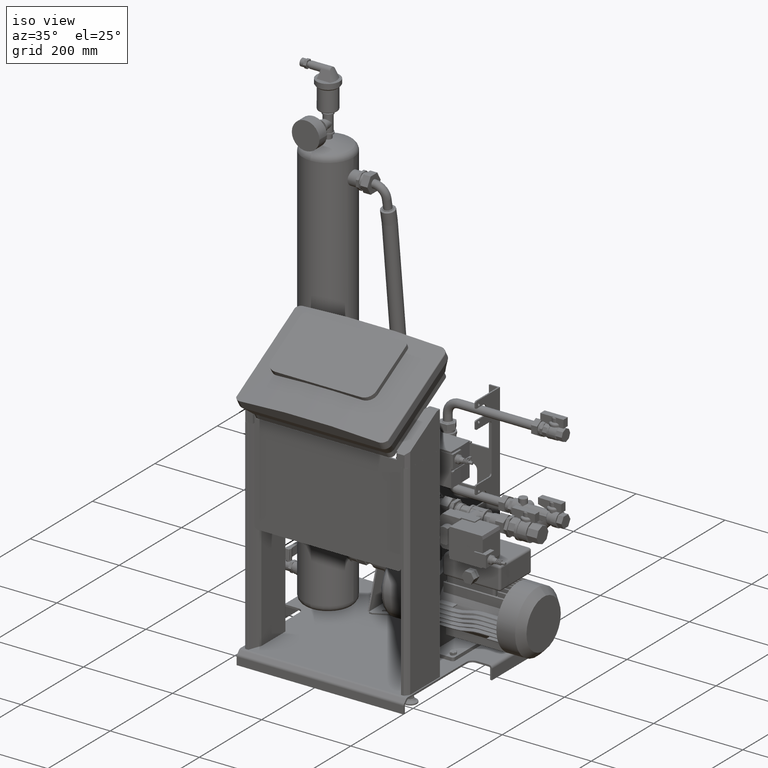
[diagram: clean part render]
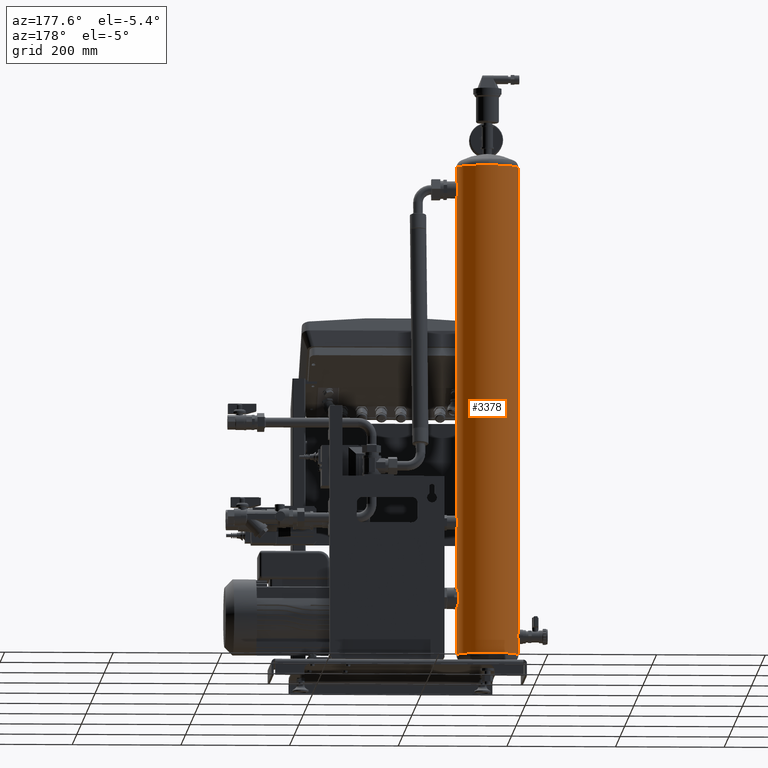
[diagram: tour spotlight — one face highlighted and labeled with its STEP entity id]
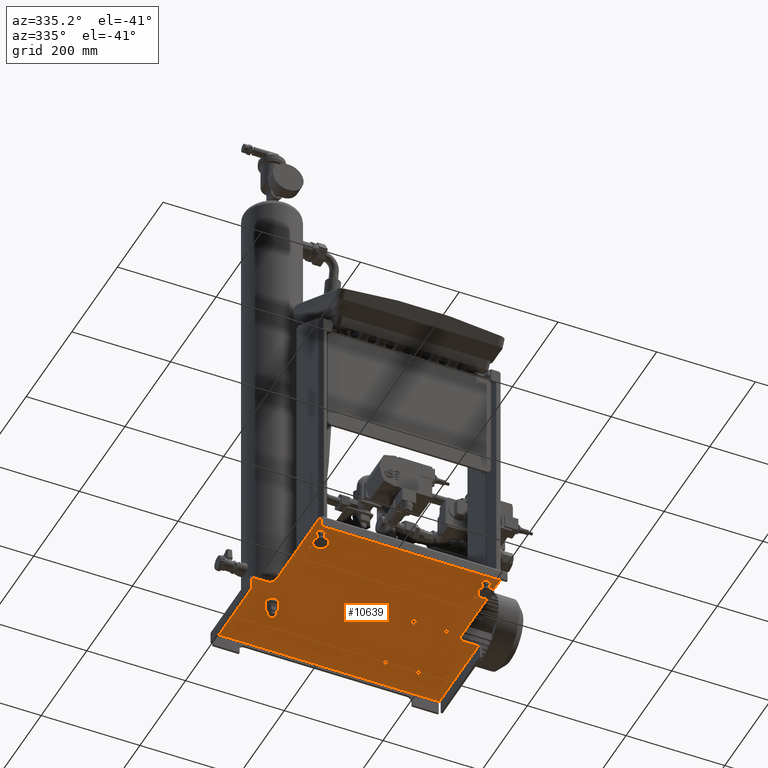
[diagram: tour spotlight — one face highlighted and labeled with its STEP entity id]
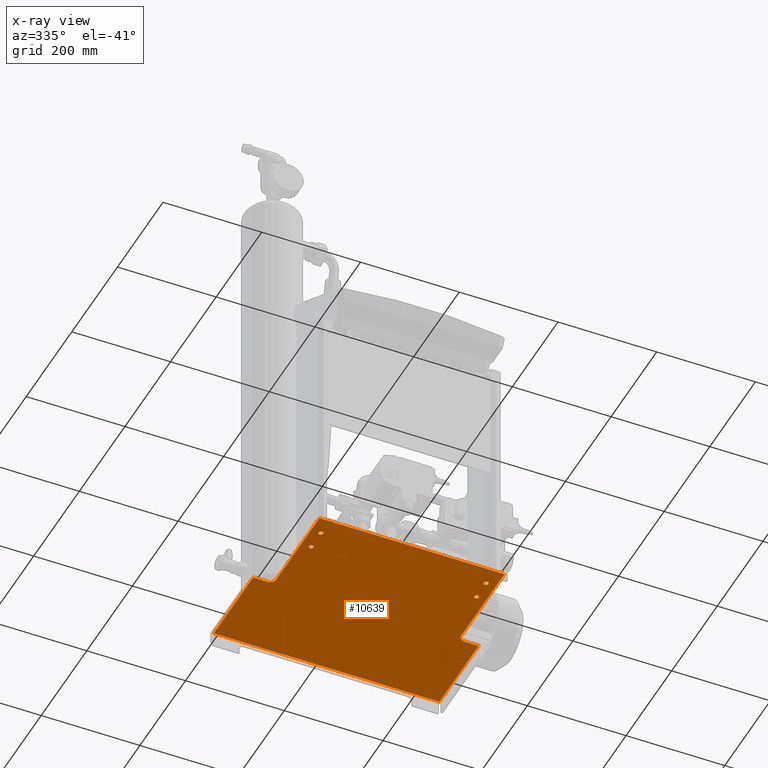
[diagram: x-ray of the same camera — body ghosted, this tour face saturated]
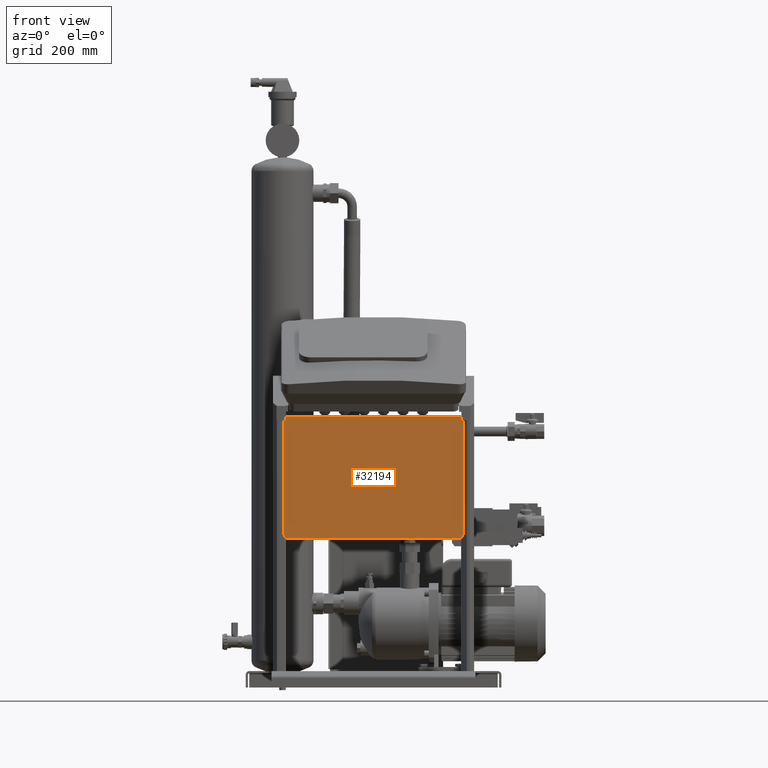
[diagram: tour spotlight — one face highlighted and labeled with its STEP entity id]
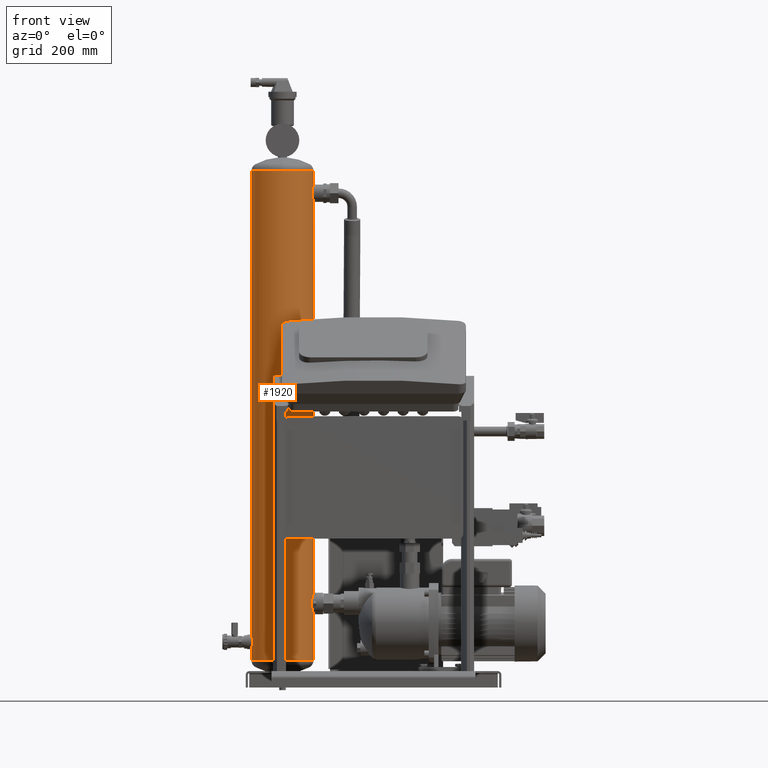
[diagram: tour spotlight — one face highlighted and labeled with its STEP entity id]
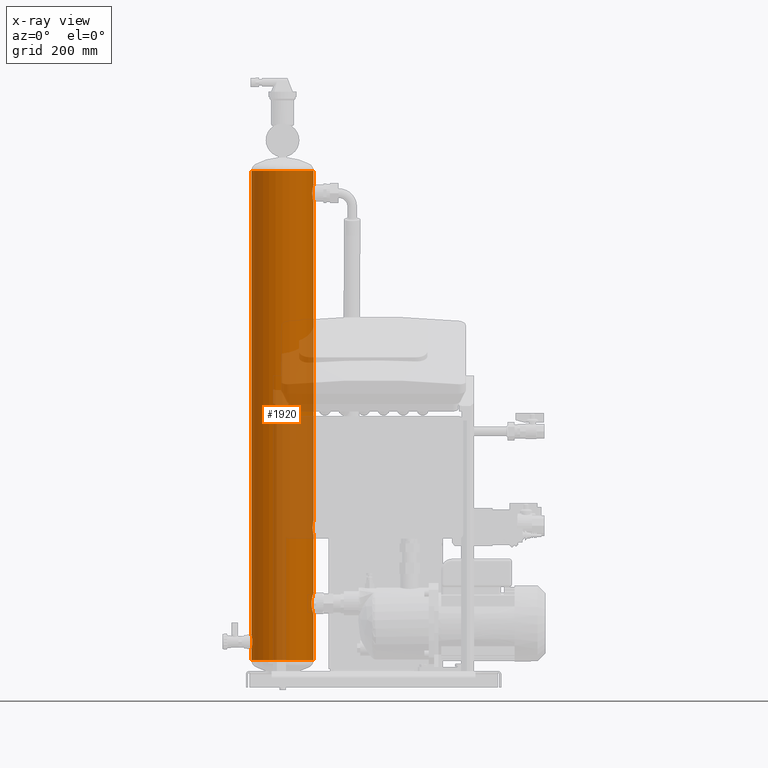
[diagram: x-ray of the same camera — body ghosted, this tour face saturated]
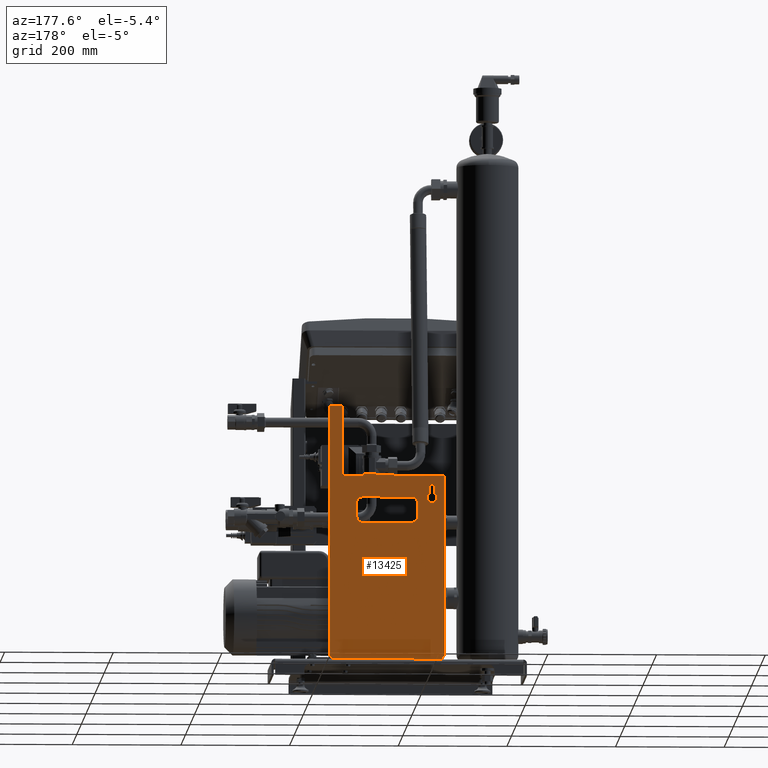
[diagram: tour spotlight — one face highlighted and labeled with its STEP entity id]
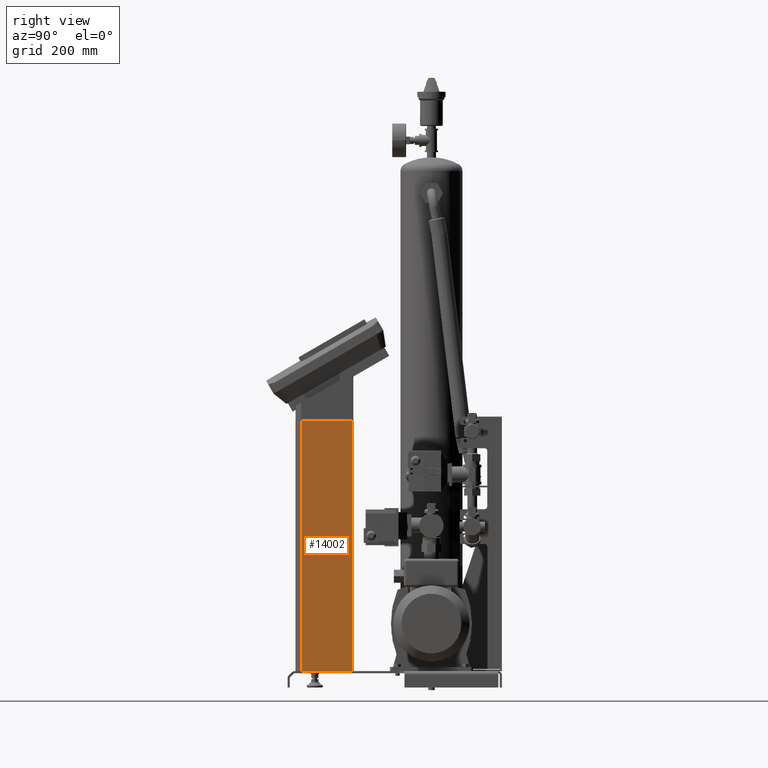
[diagram: tour spotlight — one face highlighted and labeled with its STEP entity id]
A machine part: a face-by-face anatomy tour. The part has 2765 B-rep faces; the first image is the clean iso view, then the 6 largest visible faces are spotlighted one at a time (largest first), each with its STEP entity span.

Face 1 — auxiliary view, entity #3378. In plain terms, the highlighted cylindrical surface (edge-blend (fillet) strip) has radius 57 mm, axis along (0, 0, 1).
Definition (entity closure, byte-faithful):
#1676=CARTESIAN_POINT('',(-122.75062814467054,45.24999999999855,948.59299143604755));
#1677=VERTEX_POINT('',#1676);
#1696=CARTESIAN_POINT('',(-65.750628144671907,-11.750000000000057,948.59299143604755));
#1697=VERTEX_POINT('',#1696);
#1705=CARTESIAN_POINT('',(-122.75062814467054,-11.750000000000057,948.59299143604755));
#1706=DIRECTION('',(0.0,0.0,1.0));
#1707=DIRECTION('',(1.0,0.0,0.0));
#1708=AXIS2_PLACEMENT_3D('',#1705,#1706,#1707);
#1709=CIRCLE('',#1708,56.999999999998607);
#1710=EDGE_CURVE('',#1697,#1677,#1709,.T.);
#1720=CARTESIAN_POINT('',(-65.750628144671452,-11.750000000000085,923.39299143604819));
#1721=VERTEX_POINT('',#1720);
#1722=CARTESIAN_POINT('',(-65.750628144671907,-11.750000000000057,948.59299143604755));
#1723=DIRECTION('',(0.0,0.0,-1.0));
#1724=VECTOR('',#1723,25.199999999999363);
#1725=LINE('',#1722,#1724);
#1726=EDGE_CURVE('',#1697,#1721,#1725,.T.);
#1729=CARTESIAN_POINT('',(-179.75062814467009,-11.750000000000085,948.59299143604755));
#1730=VERTEX_POINT('',#1729);
#1738=CARTESIAN_POINT('',(-179.75062814467009,-11.75,95.892991436048419));
#1739=VERTEX_POINT('',#1738);
#1740=CARTESIAN_POINT('',(-179.75062814467009,-11.750000000000085,948.59299143604755));
#1741=DIRECTION('',(0.0,0.0,-1.0));
#1742=VECTOR('',#1741,852.69999999999914);
#1743=LINE('',#1740,#1742);
#1744=EDGE_CURVE('',#1730,#1739,#1743,.T.);
#1746=CARTESIAN_POINT('',(-179.75062814467009,-11.75,69.29299143604851));
#1747=VERTEX_POINT('',#1746);
#1769=CARTESIAN_POINT('',(-179.75062814467009,-11.750000000000028,48.592991436047441));
#1770=VERTEX_POINT('',#1769);
#1771=CARTESIAN_POINT('',(-179.75062814467009,-11.75,69.29299143604851));
#1772=DIRECTION('',(0.0,0.0,-1.0));
#1773=VECTOR('',#1772,20.700000000001069);
#1774=LINE('',#1771,#1773);
#1775=EDGE_CURVE('',#1747,#1770,#1774,.T.);
#1786=CARTESIAN_POINT('',(-65.750628144670543,-11.75,48.592991436047441));
#1787=VERTEX_POINT('',#1786);
#1795=CARTESIAN_POINT('',(-65.750628144671452,-11.750000000000028,133.34299143604846));
#1796=VERTEX_POINT('',#1795);
#1797=CARTESIAN_POINT('',(-65.750628144671452,-11.750000000000028,133.34299143604846));
#1798=DIRECTION('',(0.0,0.0,-1.0));
#1799=VECTOR('',#1798,84.750000000001037);
#1800=LINE('',#1797,#1799);
#1801=EDGE_CURVE('',#1796,#1787,#1800,.T.);
#1803=CARTESIAN_POINT('',(-65.750628144671452,-11.750000000000057,172.84299143604869));
#1804=VERTEX_POINT('',#1803);
#1842=CARTESIAN_POINT('',(-65.750628144671452,-11.750000000000057,279.49299143604878));
#1843=VERTEX_POINT('',#1842);
#1844=CARTESIAN_POINT('',(-65.750628144671452,-11.750000000000057,279.49299143604878));
#1845=DIRECTION('',(0.0,0.0,-1.0));
#1846=VECTOR('',#1845,106.65000000000009);
#1847=LINE('',#1844,#1846);
#1848=EDGE_CURVE('',#1843,#1804,#1847,.T.);
#1850=CARTESIAN_POINT('',(-65.750628144671452,-11.750000000000057,305.69299143604883));
#1851=VERTEX_POINT('',#1850);
#1873=CARTESIAN_POINT('',(-65.750628144671452,-11.750000000000085,891.79299143604828));
#1874=VERTEX_POINT('',#1873);
#1875=CARTESIAN_POINT('',(-65.750628144671452,-11.750000000000085,891.79299143604828));
#1876=DIRECTION('',(0.0,0.0,-1.0));
#1877=VECTOR('',#1876,586.09999999999945);
#1878=LINE('',#1875,#1877);
#1879=EDGE_CURVE('',#1874,#1851,#1878,.T.);
#1926=CARTESIAN_POINT('',(-122.75062814467054,45.250000000000085,48.592991436047441));
#1927=VERTEX_POINT('',#1926);
#1937=CARTESIAN_POINT('',(-122.75062814467054,-11.75,48.592991436047441));
#1938=DIRECTION('',(0.0,0.0,1.0));
#1939=DIRECTION('',(1.0,0.0,0.0));
#1940=AXIS2_PLACEMENT_3D('',#1937,#1938,#1939);
#1941=CIRCLE('',#1940,57.000000000000085);
#1942=EDGE_CURVE('',#1787,#1927,#1941,.T.);
#2963=CARTESIAN_POINT('',(-67.98421507972779,4.050000000000068,907.59299143604824));
#2964=VERTEX_POINT('',#2963);
#2965=CARTESIAN_POINT('',(-67.98421507972779,4.050000000000068,907.59299143604824));
#2966=CARTESIAN_POINT('',(-67.98421507972779,4.050000000000068,906.59528455714019));
#2967=CARTESIAN_POINT('',(-67.95620430539492,3.953975471330296,905.56529001306251));
#2968=CARTESIAN_POINT('',(-67.842454480277127,3.551509542577207,903.51988151525677));
#2969=CARTESIAN_POINT('',(-67.756816406009136,3.245174081719767,902.50444110350816));
#2970=CARTESIAN_POINT('',(-67.542905768281514,2.437387126804822,900.55973821834198));
#2971=CARTESIAN_POINT('',(-67.414683044330729,1.935294192078573,899.62882686266869));
#2972=CARTESIAN_POINT('',(-67.141034932898208,0.777060311768537,897.90857330812707));
#2973=CARTESIAN_POINT('',(-66.995889705728302,0.120829745770095,897.11924689632326));
#2974=CARTESIAN_POINT('',(-66.716667200551171,-1.276105754043158,895.72231139651001));
#2975=CARTESIAN_POINT('',(-66.572644831108562,-2.065361998333032,895.06609813555121));
#2976=CARTESIAN_POINT('',(-66.303066000434399,-3.78565756842184,893.90779802703412));
#2977=CARTESIAN_POINT('',(-66.177764318660763,-4.716681059871036,893.40562838149924));
#2978=CARTESIAN_POINT('',(-65.969779844613811,-6.661605066234301,892.59775603262176));
#2979=CARTESIAN_POINT('',(-65.887099762459627,-7.677151044847136,892.29141162394569));
#2980=CARTESIAN_POINT('',(-65.777489148129177,-9.722589936144857,891.88897756086578));
#2981=CARTESIAN_POINT('',(-65.750628144671452,-10.752506941890829,891.79299143604828));
#2982=CARTESIAN_POINT('',(-65.750628144671452,-11.750000000000085,891.79299143604828));
#2983=B_SPLINE_CURVE_WITH_KNOTS('',3,(#2965,#2966,#2967,#2968,#2969,#2970,#2971,#2972,#2973,#2974,#2975,#2976,#2977,#2978,#2979,#2980,#2981,#2982),.UNSPECIFIED.,.F.,.U.,(4,2,2,2,2,2,2,2,4),(0.0,0.299312063672457,0.598624127344914,0.89793619101737,1.197248254689827,1.496496172122606,1.795744089555385,2.094992006988163,2.394239924420943),.UNSPECIFIED.);
#2984=EDGE_CURVE('',#2964,#1874,#2983,.T.);
#2986=CARTESIAN_POINT('',(-65.750628144671452,-11.750000000000085,923.39299143604819));
#2987=CARTESIAN_POINT('',(-65.750628144671452,-10.752506941890829,923.39299143604819));
#2988=CARTESIAN_POINT('',(-65.777489148129177,-9.722589936144857,923.29700531123092));
#2989=CARTESIAN_POINT('',(-65.887099762459627,-7.677151044847136,922.89457124815101));
#2990=CARTESIAN_POINT('',(-65.969779844613811,-6.661605066234301,922.58822683947517));
#2991=CARTESIAN_POINT('',(-66.177764318660763,-4.716681059871036,921.78035449059723));
#2992=CARTESIAN_POINT('',(-66.303066000434399,-3.78565756842184,921.27818484506258));
#2993=CARTESIAN_POINT('',(-66.572644831108562,-2.065361998333032,920.11988473654571));
#2994=CARTESIAN_POINT('',(-66.716667200551171,-1.276105754043158,919.46367147558669));
#2995=CARTESIAN_POINT('',(-66.995889705728302,0.120829745770095,918.06673597577321));
#2996=CARTESIAN_POINT('',(-67.141034932898208,0.77706031176848,917.27740956396963));
#2997=CARTESIAN_POINT('',(-67.414683044330729,1.935294192078573,915.55715600942801));
#2998=CARTESIAN_POINT('',(-67.542905768281514,2.437387126804879,914.62624465375427));
#2999=CARTESIAN_POINT('',(-67.756816406009136,3.245174081719824,912.68154176858854));
#3000=CARTESIAN_POINT('',(-67.842454480277127,3.551509542577207,911.66610135683993));
#3001=CARTESIAN_POINT('',(-67.95620430539492,3.953975471330296,909.62069285903442));
#3002=CARTESIAN_POINT('',(-67.98421507972779,4.050000000000068,908.59069831495651));
#3003=CARTESIAN_POINT('',(-67.98421507972779,4.050000000000068,907.59299143604824));
#3004=B_SPLINE_CURVE_WITH_KNOTS('',3,(#2986,#2987,#2988,#2989,#2990,#2991,#2992,#2993,#2994,#2995,#2996,#2997,#2998,#2999,#3000,#3001,#3002,#3003),.UNSPECIFIED.,.F.,.U.,(4,2,2,2,2,2,2,2,4),(7.182719773262829,7.481967690695607,7.781215608128386,8.080463525561166,8.379711442993946,8.6790235066664,8.978335570338857,9.277647634011313,9.576959697683773),.UNSPECIFIED.);
#3005=EDGE_CURVE('',#1721,#2964,#3004,.T.);
#3034=CARTESIAN_POINT('',(-67.276399894068334,1.350000000000023,292.59299143604892));
#3035=VERTEX_POINT('',#3034);
#3036=CARTESIAN_POINT('',(-67.276399894068334,1.349999999999994,292.59299143604892));
#3037=CARTESIAN_POINT('',(-67.276399894068334,1.350000000000023,290.94167276904307));
#3038=CARTESIAN_POINT('',(-67.195001486084664,1.018771155910201,289.18450095359651));
#3039=CARTESIAN_POINT('',(-66.904209495846942,-0.319921982332573,285.95878812278795));
#3040=CARTESIAN_POINT('',(-66.699361977829255,-1.327081382692597,284.48971238626871));
#3041=CARTESIAN_POINT('',(-66.317336487401633,-3.646606217708381,282.17018755125298));
#3042=CARTESIAN_POINT('',(-66.114876274100141,-5.115730141763265,281.16293850460067));
#3043=CARTESIAN_POINT('',(-65.829587920915117,-8.341612378980756,279.82418012236474));
#3044=CARTESIAN_POINT('',(-65.750628144671452,-10.098844685905277,279.49299143604878));
#3045=CARTESIAN_POINT('',(-65.750628144671452,-11.750000000000057,279.49299143604878));
#3046=B_SPLINE_CURVE_WITH_KNOTS('',3,(#3036,#3037,#3038,#3039,#3040,#3041,#3042,#3043,#3044,#3045),.UNSPECIFIED.,.F.,.U.,(4,2,2,2,4),(0.0,0.495395600101728,0.990791200203456,1.486137794431896,1.981484388660335),.UNSPECIFIED.);
#3047=EDGE_CURVE('',#3035,#1843,#3046,.T.);
#3049=CARTESIAN_POINT('',(-65.750628144671452,-11.750000000000057,305.69299143604883));
#3050=CARTESIAN_POINT('',(-65.750628144671452,-10.098844685905249,305.69299143604883));
#3051=CARTESIAN_POINT('',(-65.829587920915117,-8.341612378980813,305.3618027497331));
#3052=CARTESIAN_POINT('',(-66.114876274100141,-5.115730141763265,304.02304436749716));
#3053=CARTESIAN_POINT('',(-66.317336487401633,-3.646606217708381,303.01579532084486));
#3054=CARTESIAN_POINT('',(-66.699361977829255,-1.327081382692597,300.69627048582913));
#3055=CARTESIAN_POINT('',(-66.904209495846942,-0.319921982332573,299.22719474930966));
#3056=CARTESIAN_POINT('',(-67.195001486084664,1.018771155910201,296.0014819185011));
#3057=CARTESIAN_POINT('',(-67.276399894068334,1.350000000000023,294.24431010305477));
#3058=CARTESIAN_POINT('',(-67.276399894068334,1.350000000000023,292.59299143604892));
#3059=B_SPLINE_CURVE_WITH_KNOTS('',3,(#3049,#3050,#3051,#3052,#3053,#3054,#3055,#3056,#3057,#3058),.UNSPECIFIED.,.F.,.U.,(4,2,2,2,4),(5.944453165981011,6.439799760209453,6.93514635443789,7.430541954539623,7.925937554641355),.UNSPECIFIED.);
#3060=EDGE_CURVE('',#1851,#3035,#3059,.T.);
#3097=CARTESIAN_POINT('',(-178.17724629876619,1.550000000000011,82.592991436048464));
#3098=VERTEX_POINT('',#3097);
#3099=CARTESIAN_POINT('',(-178.17724629876619,1.550000000000011,82.592991436048464));
#3100=CARTESIAN_POINT('',(-178.17724629876619,1.550000000000011,84.26973089702517));
#3101=CARTESIAN_POINT('',(-178.26124472075543,1.213633560291271,86.053812584324191));
#3102=CARTESIAN_POINT('',(-178.56121088818389,-0.145553007545857,89.328709796538874));
#3103=CARTESIAN_POINT('',(-178.77247707139594,-1.16805462224346,90.820086437854002));
#3104=CARTESIAN_POINT('',(-179.16638563749046,-3.522781051318475,93.174812866929074));
#3105=CARTESIAN_POINT('',(-179.37511305954621,-5.014209677091628,94.197411294366589));
#3106=CARTESIAN_POINT('',(-179.66922483004618,-8.289289907643195,95.556668355492661));
#3107=CARTESIAN_POINT('',(-179.75062814467009,-10.073437048427024,95.892991436048419));
#3108=CARTESIAN_POINT('',(-179.75062814467009,-11.75,95.892991436048419));
#3109=B_SPLINE_CURVE_WITH_KNOTS('',3,(#3099,#3100,#3101,#3102,#3103,#3104,#3105,#3106,#3107,#3108),.UNSPECIFIED.,.F.,.U.,(4,2,2,2,4),(0.0,0.503021838293021,1.006043676586042,1.509012562057933,2.011981447529825),.UNSPECIFIED.);
#3110=EDGE_CURVE('',#3098,#1739,#3109,.T.);
#3112=CARTESIAN_POINT('',(-179.75062814467009,-11.75,69.29299143604851));
#3113=CARTESIAN_POINT('',(-179.75062814467009,-10.073437048427024,69.29299143604851));
#3114=CARTESIAN_POINT('',(-179.66922483004618,-8.289289907643195,69.629314516604268));
#3115=CARTESIAN_POINT('',(-179.37511305954621,-5.014209677091628,70.98857157773034));
#3116=CARTESIAN_POINT('',(-179.16638563749046,-3.522781051318475,72.011170005167855));
#3117=CARTESIAN_POINT('',(-178.77247707139594,-1.16805462224346,74.365896434242927));
#3118=CARTESIAN_POINT('',(-178.56121088818389,-0.145553007545857,75.857273075558055));
#3119=CARTESIAN_POINT('',(-178.26124472075543,1.213633560291271,79.132170287772738));
#3120=CARTESIAN_POINT('',(-178.17724629876619,1.550000000000011,80.916251975071759));
#3121=CARTESIAN_POINT('',(-178.17724629876619,1.550000000000011,82.592991436048464));
#3122=B_SPLINE_CURVE_WITH_KNOTS('',3,(#3112,#3113,#3114,#3115,#3116,#3117,#3118,#3119,#3120,#3121),.UNSPECIFIED.,.F.,.U.,(4,2,2,2,4),(6.035944342589468,6.538913228061358,7.04188211353325,7.544903951826266,8.047925790119285),.UNSPECIFIED.);
#3123=EDGE_CURVE('',#1747,#3098,#3122,.T.);
#3144=CARTESIAN_POINT('',(-69.28159505073944,8.000000000000057,153.09299143604846));
#3145=VERTEX_POINT('',#3144);
#3146=CARTESIAN_POINT('',(-69.28159505073944,8.000000000000028,153.09299143604846));
#3147=CARTESIAN_POINT('',(-69.28159505073944,8.000000000000057,151.84141758739941));
#3148=CARTESIAN_POINT('',(-69.236425784489882,7.879117224951301,150.55080685666815));
#3149=CARTESIAN_POINT('',(-69.053871540608441,7.374079778226303,147.99058825460645));
#3150=CARTESIAN_POINT('',(-68.916678071516969,6.990074300351239,146.72093730337849));
#3151=CARTESIAN_POINT('',(-68.575381221158466,5.979273981951565,144.29149503285851));
#3152=CARTESIAN_POINT('',(-68.371379975593015,5.351677505622661,143.12957065415583));
#3153=CARTESIAN_POINT('',(-67.937500248032109,3.905382941293112,140.98323866094859));
#3154=CARTESIAN_POINT('',(-67.708062143295763,3.08655557995894,139.99882915913884));
#3155=CARTESIAN_POINT('',(-67.26786489091154,1.344638330881708,138.2569119100616));
#3156=CARTESIAN_POINT('',(-67.041261120029219,0.360454790779329,137.43814247553166));
#3157=CARTESIAN_POINT('',(-66.617612476940565,-1.786002732058051,135.99164149762066));
#3158=CARTESIAN_POINT('',(-66.420949155084315,-2.948278956143241,135.36380155957306));
#3159=CARTESIAN_POINT('',(-66.094595345274399,-5.378424383713025,134.35272740293965));
#3160=CARTESIAN_POINT('',(-65.96488998779131,-6.648416169723987,133.96869015321602));
#3161=CARTESIAN_POINT('',(-65.792852376126746,-9.208741433836678,133.46375146000776));
#3162=CARTESIAN_POINT('',(-65.750628144671452,-10.499110057448092,133.34299143604846));
#3163=CARTESIAN_POINT('',(-65.750628144671452,-11.750000000000028,133.34299143604846));
#3164=B_SPLINE_CURVE_WITH_KNOTS('',3,(#3146,#3147,#3148,#3149,#3150,#3151,#3152,#3153,#3154,#3155,#3156,#3157,#3158,#3159,#3160,#3161,#3162,#3163),.UNSPECIFIED.,.F.,.U.,(4,2,2,2,2,2,2,2,4),(0.0,0.375472154594723,0.750944309189447,1.12641646378417,1.501888618378893,1.877155601144482,2.252422583910072,2.62768956667566,3.002956549441249),.UNSPECIFIED.);
#3165=EDGE_CURVE('',#3145,#1796,#3164,.T.);
#3167=CARTESIAN_POINT('',(-65.750628144671452,-11.750000000000057,172.84299143604869));
#3168=CARTESIAN_POINT('',(-65.750628144671452,-10.499110057448121,172.84299143604869));
#3169=CARTESIAN_POINT('',(-65.792852376126746,-9.208741433836678,172.7222314120894));
#3170=CARTESIAN_POINT('',(-65.96488998779131,-6.648416169723987,172.21729271888114));
#3171=CARTESIAN_POINT('',(-66.094595345274399,-5.378424383713082,171.83325546915728));
#3172=CARTESIAN_POINT('',(-66.420949155084315,-2.94827895614327,170.82218131252387));
#3173=CARTESIAN_POINT('',(-66.617612476940565,-1.786002732058108,170.19434137447649));
#3174=CARTESIAN_POINT('',(-67.041261120029219,0.360454790779272,168.74784039656549));
#3175=CARTESIAN_POINT('',(-67.26786489091154,1.344638330881708,167.92907096203555));
#3176=CARTESIAN_POINT('',(-67.708062143295763,3.086555579958883,166.18715371295832));
#3177=CARTESIAN_POINT('',(-67.937500248032109,3.905382941293055,165.20274421114857));
#3178=CARTESIAN_POINT('',(-68.371379975593015,5.351677505622604,163.05641221794133));
#3179=CARTESIAN_POINT('',(-68.575381221158466,5.979273981951508,161.89448783923865));
#3180=CARTESIAN_POINT('',(-68.916678071516969,6.990074300351182,159.46504556871866));
#3181=CARTESIAN_POINT('',(-69.053871540608441,7.374079778226303,158.19539461749071));
#3182=CARTESIAN_POINT('',(-69.236425784489882,7.879117224951301,155.63517601542901));
#3183=CARTESIAN_POINT('',(-69.28159505073944,8.000000000000057,154.34456528469752));
#3184=CARTESIAN_POINT('',(-69.28159505073944,8.000000000000057,153.09299143604846));
#3185=B_SPLINE_CURVE_WITH_KNOTS('',3,(#3167,#3168,#3169,#3170,#3171,#3172,#3173,#3174,#3175,#3176,#3177,#3178,#3179,#3180,#3181,#3182,#3183,#3184),.UNSPECIFIED.,.F.,.U.,(4,2,2,2,2,2,2,2,4),(9.008869648323742,9.38413663108933,9.759403613854918,10.134670596620506,10.509937579386094,10.885409733980817,11.260881888575542,11.636354043170266,12.011826197764988),.UNSPECIFIED.);
#3186=EDGE_CURVE('',#1804,#3145,#3185,.T.);
#3337=CARTESIAN_POINT('',(-122.75062814467054,-11.75,48.592991436047441));
#3338=DIRECTION('',(0.0,0.0,1.0));
#3339=DIRECTION('',(1.0,0.0,0.0));
#3340=AXIS2_PLACEMENT_3D('',#3337,#3338,#3339);
#3341=CIRCLE('',#3340,57.000000000000085);
#3342=EDGE_CURVE('',#1927,#1770,#3341,.T.);
#3347=CARTESIAN_POINT('',(-122.75062814467054,-11.750000000000057,3.592991436047441));
#3348=DIRECTION('',(0.0,0.0,1.0));
#3349=DIRECTION('',(1.0,0.0,0.0));
#3350=AXIS2_PLACEMENT_3D('',#3347,#3348,#3349);
#3351=CYLINDRICAL_SURFACE('',#3350,56.999999999999339);
#3352=ORIENTED_EDGE('',*,*,#1726,.T.);
#3353=ORIENTED_EDGE('',*,*,#3005,.T.);
#3354=ORIENTED_EDGE('',*,*,#2984,.T.);
#3355=ORIENTED_EDGE('',*,*,#1879,.T.);
#3356=ORIENTED_EDGE('',*,*,#3060,.T.);
#3357=ORIENTED_EDGE('',*,*,#3047,.T.);
#3358=ORIENTED_EDGE('',*,*,#1848,.T.);
#3359=ORIENTED_EDGE('',*,*,#3186,.T.);
#3360=ORIENTED_EDGE('',*,*,#3165,.T.);
#3361=ORIENTED_EDGE('',*,*,#1801,.T.);
#3362=ORIENTED_EDGE('',*,*,#1942,.T.);
#3363=ORIENTED_EDGE('',*,*,#3342,.T.);
#3364=ORIENTED_EDGE('',*,*,#1775,.F.);
#3365=ORIENTED_EDGE('',*,*,#3123,.T.);
#3366=ORIENTED_EDGE('',*,*,#3110,.T.);
#3367=ORIENTED_EDGE('',*,*,#1744,.F.);
#3368=CARTESIAN_POINT('',(-122.75062814467054,-11.750000000000057,948.59299143604755));
#3369=DIRECTION('',(0.0,0.0,1.0));
#3370=DIRECTION('',(1.0,0.0,0.0));
#3371=AXIS2_PLACEMENT_3D('',#3368,#3369,#3370);
#3372=CIRCLE('',#3371,56.999999999998607);
#3373=EDGE_CURVE('',#1677,#1730,#3372,.T.);
#3374=ORIENTED_EDGE('',*,*,#3373,.F.);
#3375=ORIENTED_EDGE('',*,*,#1710,.F.);
#3376=EDGE_LOOP('',(#3352,#3353,#3354,#3355,#3356,#3357,#3358,#3359,#3360,#3361,#3362,#3363,#3364,#3365,#3366,#3367,#3374,#3375));
#3377=FACE_OUTER_BOUND('',#3376,.T.);
#3378=ADVANCED_FACE('',(#3377),#3351,.T.);

Face 2 — auxiliary view, entity #10639. An x-ray twin of the same camera follows (body ghosted, this face saturated) — the face is partly hidden behind the body. In plain terms, the highlighted planar face has unit normal (0, 0, -1).
Definition (entity closure, byte-faithful):
#8853=CARTESIAN_POINT('',(-118.8515066156703,-228.4074149234998,24.750000000000167));
#8854=VERTEX_POINT('',#8853);
#8870=CARTESIAN_POINT('',(-126.74974967317695,-224.09258507608078,24.750000000000167));
#8871=VERTEX_POINT('',#8870);
#8878=CARTESIAN_POINT('',(-122.80062814467027,-226.24999999979968,24.750000000000167));
#8879=DIRECTION('',(0.0,0.0,1.0));
#8880=DIRECTION('',(-1.0,0.0,0.0));
#8881=AXIS2_PLACEMENT_3D('',#8878,#8879,#8880);
#8882=CIRCLE('',#8881,4.5);
#8883=EDGE_CURVE('',#8854,#8871,#8882,.T.);
#8895=CARTESIAN_POINT('',(216.1484933843297,-228.4074149234998,24.750000000000167));
#8896=VERTEX_POINT('',#8895);
#8912=CARTESIAN_POINT('',(208.25025032682305,-224.09258507608078,24.750000000000167));
#8913=VERTEX_POINT('',#8912);
#8920=CARTESIAN_POINT('',(212.19937185532973,-226.24999999979968,24.750000000000167));
#8921=DIRECTION('',(0.0,0.0,1.0));
#8922=DIRECTION('',(-1.0,0.0,0.0));
#8923=AXIS2_PLACEMENT_3D('',#8920,#8921,#8922);
#8924=CIRCLE('',#8923,4.5);
#8925=EDGE_CURVE('',#8896,#8913,#8924,.T.);
#8937=CARTESIAN_POINT('',(216.1484933843297,-186.4074149234998,24.750000000000167));
#8938=VERTEX_POINT('',#8937);
#8954=CARTESIAN_POINT('',(208.25025032682305,-182.09258507608078,24.750000000000167));
#8955=VERTEX_POINT('',#8954);
#8962=CARTESIAN_POINT('',(212.19937185532973,-184.24999999979968,24.750000000000167));
#8963=DIRECTION('',(0.0,0.0,1.0));
#8964=DIRECTION('',(-1.0,0.0,0.0));
#8965=AXIS2_PLACEMENT_3D('',#8962,#8963,#8964);
#8966=CIRCLE('',#8965,4.5);
#8967=EDGE_CURVE('',#8938,#8955,#8966,.T.);
#8979=CARTESIAN_POINT('',(-118.85150661616359,-186.40741492351859,24.750000000000167));
#8980=VERTEX_POINT('',#8979);
#8996=CARTESIAN_POINT('',(-126.74974967367024,-182.09258507599975,24.750000000000167));
#8997=VERTEX_POINT('',#8996);
#9004=CARTESIAN_POINT('',(-122.80062814467027,-184.24999999979968,24.750000000000167));
#9005=DIRECTION('',(0.0,0.0,1.0));
#9006=DIRECTION('',(-1.0,0.0,0.0));
#9007=AXIS2_PLACEMENT_3D('',#9004,#9005,#9006);
#9008=CIRCLE('',#9007,4.5);
#9009=EDGE_CURVE('',#8980,#8997,#9008,.T.);
#9038=CARTESIAN_POINT('',(273.1993718553299,111.25000000000023,24.750000000000167));
#9039=VERTEX_POINT('',#9038);
#9095=CARTESIAN_POINT('',(-183.8006281446701,111.25000000000023,24.750000000000167));
#9096=VERTEX_POINT('',#9095);
#9097=CARTESIAN_POINT('',(273.1993718553299,111.25000000000023,24.750000000000167));
#9098=DIRECTION('',(-1.0,0.0,0.0));
#9099=VECTOR('',#9098,457.0);
#9100=LINE('',#9097,#9099);
#9101=EDGE_CURVE('',#9039,#9096,#9100,.T.);
#9793=CARTESIAN_POINT('',(-183.80062814467027,-61.249657658999695,24.750000000000167));
#9794=VERTEX_POINT('',#9793);
#9795=CARTESIAN_POINT('',(-183.80062814467027,111.25000000000023,24.750000000000167));
#9796=DIRECTION('',(0.0,-1.0,0.0));
#9797=VECTOR('',#9796,172.49965765899989);
#9798=LINE('',#9795,#9797);
#9799=EDGE_CURVE('',#9096,#9794,#9798,.T.);
#9819=CARTESIAN_POINT('',(-122.80062814467027,-184.24999999979968,24.750000000000167));
#9820=DIRECTION('',(0.0,0.0,1.0));
#9821=DIRECTION('',(-1.0,0.0,0.0));
#9822=AXIS2_PLACEMENT_3D('',#9819,#9820,#9821);
#9823=CIRCLE('',#9822,4.5);
#9824=EDGE_CURVE('',#8997,#8980,#9823,.T.);
#9843=CARTESIAN_POINT('',(212.19937185532973,-184.24999999979968,24.750000000000167));
#9844=DIRECTION('',(0.0,0.0,1.0));
#9845=DIRECTION('',(-1.0,0.0,0.0));
#9846=AXIS2_PLACEMENT_3D('',#9843,#9844,#9845);
#9847=CIRCLE('',#9846,4.5);
#9848=EDGE_CURVE('',#8955,#8938,#9847,.T.);
#9867=CARTESIAN_POINT('',(273.19937185532973,-61.249657658999695,24.750000000000167));
#9868=VERTEX_POINT('',#9867);
#9876=CARTESIAN_POINT('',(273.19937185532973,-61.249657658999666,24.750000000000167));
#9877=DIRECTION('',(0.0,1.0,0.0));
#9878=VECTOR('',#9877,172.49965765899989);
#9879=LINE('',#9876,#9878);
#9880=EDGE_CURVE('',#9868,#9039,#9879,.T.);
#9914=CARTESIAN_POINT('',(-155.30062814467027,-61.249657658999695,24.750000000000167));
#9915=VERTEX_POINT('',#9914);
#9916=CARTESIAN_POINT('',(-183.80062814467027,-61.249657658999695,24.750000000000167));
#9917=DIRECTION('',(1.0,0.0,0.0));
#9918=VECTOR('',#9917,28.5);
#9919=LINE('',#9916,#9918);
#9920=EDGE_CURVE('',#9794,#9915,#9919,.T.);
#9944=CARTESIAN_POINT('',(-142.80062814467027,-73.749657658999695,24.750000000000167));
#9945=VERTEX_POINT('',#9944);
#9946=CARTESIAN_POINT('',(-155.30062814467027,-73.749657658999695,24.750000000000167));
#9947=DIRECTION('',(0.0,0.0,1.0));
#9948=DIRECTION('',(-1.0,0.0,0.0));
#9949=AXIS2_PLACEMENT_3D('',#9946,#9947,#9948);
#9950=CIRCLE('',#9949,12.5);
#9951=EDGE_CURVE('',#9915,#9945,#9950,.F.);
#9977=CARTESIAN_POINT('',(-142.80062814467027,-263.55965765899964,24.750000000000167));
#9978=VERTEX_POINT('',#9977);
#9994=CARTESIAN_POINT('',(-142.80062814467027,-263.55965765899953,24.750000000000167));
#9995=DIRECTION('',(0.0,1.0,0.0));
#9996=VECTOR('',#9995,189.80999999999983);
#9997=LINE('',#9994,#9996);
#9998=EDGE_CURVE('',#9978,#9945,#9997,.T.);
#10144=CARTESIAN_POINT('',(232.19937185532973,-263.55965765899964,24.750000000000167));
#10145=VERTEX_POINT('',#10144);
#10167=CARTESIAN_POINT('',(232.19937185532973,-73.749657658999695,24.750000000000167));
#10168=VERTEX_POINT('',#10167);
#10169=CARTESIAN_POINT('',(232.19937185532973,-263.55965765899964,24.750000000000167));
#10170=DIRECTION('',(0.0,1.0,0.0));
#10171=VECTOR('',#10170,189.80999999999995);
#10172=LINE('',#10169,#10171);
#10173=EDGE_CURVE('',#10145,#10168,#10172,.T.);
#10198=CARTESIAN_POINT('',(244.69937185532973,-61.249657658999695,24.750000000000167));
#10199=VERTEX_POINT('',#10198);
#10200=CARTESIAN_POINT('',(244.69937185532973,-73.749657658999695,24.750000000000167));
#10201=DIRECTION('',(0.0,0.0,1.0));
#10202=DIRECTION('',(-1.0,0.0,0.0));
#10203=AXIS2_PLACEMENT_3D('',#10200,#10201,#10202);
#10204=CIRCLE('',#10203,12.5);
#10205=EDGE_CURVE('',#10168,#10199,#10204,.F.);
#10238=CARTESIAN_POINT('',(244.69937185532973,-61.249657658999695,24.750000000000167));
#10239=DIRECTION('',(1.0,0.0,0.0));
#10240=VECTOR('',#10239,28.5);
#10241=LINE('',#10238,#10240);
#10242=EDGE_CURVE('',#10199,#9868,#10241,.T.);
#10506=CARTESIAN_POINT('',(232.19937185532973,-263.55965765899964,24.750000000000167));
#10507=DIRECTION('',(-1.0,0.0,0.0));
#10508=VECTOR('',#10507,375.0);
#10509=LINE('',#10506,#10508);
#10510=EDGE_CURVE('',#10145,#9978,#10509,.T.);
#10547=CARTESIAN_POINT('',(212.19937185532973,-226.24999999979968,24.750000000000167));
#10548=DIRECTION('',(0.0,0.0,1.0));
#10549=DIRECTION('',(-1.0,0.0,0.0));
#10550=AXIS2_PLACEMENT_3D('',#10547,#10548,#10549);
#10551=CIRCLE('',#10550,4.5);
#10552=EDGE_CURVE('',#8913,#8896,#10551,.T.);
#10588=CARTESIAN_POINT('',(-122.80062814467027,-226.24999999979968,24.750000000000167));
#10589=DIRECTION('',(0.0,0.0,1.0));
#10590=DIRECTION('',(-1.0,0.0,0.0));
#10591=AXIS2_PLACEMENT_3D('',#10588,#10589,#10590);
#10592=CIRCLE('',#10591,4.5);
#10593=EDGE_CURVE('',#8871,#8854,#10592,.T.);
#10606=CARTESIAN_POINT('',(-30.300628144670085,87.750000000000227,24.750000000000167));
#10607=DIRECTION('',(0.0,0.0,-1.0));
#10608=DIRECTION('',(-1.0,0.0,0.0));
#10609=AXIS2_PLACEMENT_3D('',#10606,#10607,#10608);
#10610=PLANE('',#10609);
#10611=ORIENTED_EDGE('',*,*,#9880,.F.);
#10612=ORIENTED_EDGE('',*,*,#10242,.F.);
#10613=ORIENTED_EDGE('',*,*,#10205,.F.);
#10614=ORIENTED_EDGE('',*,*,#10173,.F.);
#10615=ORIENTED_EDGE('',*,*,#10510,.T.);
#10616=ORIENTED_EDGE('',*,*,#9998,.T.);
#10617=ORIENTED_EDGE('',*,*,#9951,.F.);
#10618=ORIENTED_EDGE('',*,*,#9920,.F.);
#10619=ORIENTED_EDGE('',*,*,#9799,.F.);
#10620=ORIENTED_EDGE('',*,*,#9101,.F.);
#10621=EDGE_LOOP('',(#10611,#10612,#10613,#10614,#10615,#10616,#10617,#10618,#10619,#10620));
#10622=FACE_OUTER_BOUND('',#10621,.T.);
#10623=ORIENTED_EDGE('',*,*,#8967,.T.);
#10624=ORIENTED_EDGE('',*,*,#9848,.T.);
#10625=EDGE_LOOP('',(#10623,#10624));
#10626=FACE_BOUND('',#10625,.T.);
#10627=ORIENTED_EDGE('',*,*,#9824,.T.);
#10628=ORIENTED_EDGE('',*,*,#9009,.T.);
#10629=EDGE_LOOP('',(#10627,#10628));
#10630=FACE_BOUND('',#10629,.T.);
#10631=ORIENTED_EDGE('',*,*,#8883,.T.);
#10632=ORIENTED_EDGE('',*,*,#10593,.T.);
#10633=EDGE_LOOP('',(#10631,#10632));
#10634=FACE_BOUND('',#10633,.T.);
#10635=ORIENTED_EDGE('',*,*,#8925,.T.);
#10636=ORIENTED_EDGE('',*,*,#10552,.T.);
#10637=EDGE_LOOP('',(#10635,#10636));
#10638=FACE_BOUND('',#10637,.T.);
#10639=ADVANCED_FACE('',(#10622,#10626,#10630,#10634,#10638),#10610,.T.);

Face 3 — front view, entity #32194. In plain terms, the highlighted face is a freeform B-spline surface patch.
Definition (entity closure, byte-faithful):
#31000=CARTESIAN_POINT('',(209.69937148988339,-252.24915677017097,488.45007196527786));
#31001=VERTEX_POINT('',#31000);
#31010=CARTESIAN_POINT('',(209.69937148988362,-252.24915677017097,281.45007196527786));
#31011=VERTEX_POINT('',#31010);
#31012=CARTESIAN_POINT('',(209.69937148988339,-252.24915677017097,488.45007196527786));
#31013=DIRECTION('',(0.0,0.0,-1.0));
#31014=VECTOR('',#31013,207.0);
#31015=LINE('',#31012,#31014);
#31016=EDGE_CURVE('',#31001,#31011,#31015,.T.);
#31108=CARTESIAN_POINT('',(-120.30062851011638,-252.24915677017074,281.45007196527763));
#31109=VERTEX_POINT('',#31108);
#31118=CARTESIAN_POINT('',(-120.30062851011661,-252.24915677017074,488.45007196527763));
#31119=VERTEX_POINT('',#31118);
#31120=CARTESIAN_POINT('',(-120.30062851011638,-252.24915677017074,281.45007196527763));
#31121=DIRECTION('',(0.0,0.0,1.0));
#31122=VECTOR('',#31121,207.0);
#31123=LINE('',#31120,#31122);
#31124=EDGE_CURVE('',#31109,#31119,#31123,.T.);
#31480=CARTESIAN_POINT('',(-111.30062851011638,-252.24915677017074,272.45007196527763));
#31481=VERTEX_POINT('',#31480);
#31488=CARTESIAN_POINT('',(-111.30062851011638,-252.24915677017074,281.45007196527763));
#31489=DIRECTION('',(0.0,1.0,0.0));
#31490=DIRECTION('',(1.0,0.0,0.0));
#31491=AXIS2_PLACEMENT_3D('',#31488,#31489,#31490);
#31492=CIRCLE('',#31491,9.0);
#31493=EDGE_CURVE('',#31481,#31109,#31492,.T.);
#31605=CARTESIAN_POINT('',(-111.30062851011661,-252.24915677017074,497.45007196527763));
#31606=VERTEX_POINT('',#31605);
#31607=CARTESIAN_POINT('',(-111.30062851011661,-252.24915677017074,488.45007196527763));
#31608=DIRECTION('',(0.0,1.0,0.0));
#31609=DIRECTION('',(1.0,0.0,0.0));
#31610=AXIS2_PLACEMENT_3D('',#31607,#31608,#31609);
#31611=CIRCLE('',#31610,9.0);
#31612=EDGE_CURVE('',#31119,#31606,#31611,.T.);
#31631=CARTESIAN_POINT('',(200.69937148988339,-252.24915677017097,497.45007196527786));
#31632=VERTEX_POINT('',#31631);
#31633=CARTESIAN_POINT('',(200.69937148988339,-252.24915677017097,497.45007196527786));
#31634=DIRECTION('',(-1.0,0.0,0.0));
#31635=VECTOR('',#31634,312.0);
#31636=LINE('',#31633,#31635);
#31637=EDGE_CURVE('',#31606,#31632,#31636,.F.);
#31656=CARTESIAN_POINT('',(200.69937148988339,-252.24915677017097,488.45007196527786));
#31657=DIRECTION('',(0.0,1.0,0.0));
#31658=DIRECTION('',(1.0,0.0,0.0));
#31659=AXIS2_PLACEMENT_3D('',#31656,#31657,#31658);
#31660=CIRCLE('',#31659,9.0);
#31661=EDGE_CURVE('',#31632,#31001,#31660,.T.);
#31672=CARTESIAN_POINT('',(200.69937148988362,-252.24915677017097,272.45007196527786));
#31673=VERTEX_POINT('',#31672);
#31674=CARTESIAN_POINT('',(200.69937148988362,-252.24915677017097,281.45007196527786));
#31675=DIRECTION('',(0.0,1.0,0.0));
#31676=DIRECTION('',(1.0,0.0,0.0));
#31677=AXIS2_PLACEMENT_3D('',#31674,#31675,#31676);
#31678=CIRCLE('',#31677,9.0);
#31679=EDGE_CURVE('',#31011,#31673,#31678,.T.);
#31698=CARTESIAN_POINT('',(-111.30062851011638,-252.24915677017074,272.45007196527763));
#31699=DIRECTION('',(1.0,0.0,0.0));
#31700=VECTOR('',#31699,312.0);
#31701=LINE('',#31698,#31700);
#31702=EDGE_CURVE('',#31673,#31481,#31701,.F.);
#32179=CARTESIAN_POINT('',(209.69937148988362,-252.24915677017097,497.45007196527786));
#32180=CARTESIAN_POINT('',(209.69937148988362,-252.24915677017097,272.45007196527763));
#32181=CARTESIAN_POINT('',(-120.30062851011661,-252.24915677017097,497.45007196527786));
#32182=CARTESIAN_POINT('',(-120.30062851011661,-252.24915677017097,272.45007196527763));
#32183=B_SPLINE_SURFACE_WITH_KNOTS('',1,1,((#32179,#32181),(#32180,#32182)),.UNSPECIFIED.,.F.,.F.,.U.,(2,2),(2,2),(0.0,225.00000000000023),(0.0,330.00000000000023),.UNSPECIFIED.);
#32184=ORIENTED_EDGE('',*,*,#31661,.F.);
#32185=ORIENTED_EDGE('',*,*,#31637,.F.);
#32186=ORIENTED_EDGE('',*,*,#31612,.F.);
#32187=ORIENTED_EDGE('',*,*,#31124,.F.);
#32188=ORIENTED_EDGE('',*,*,#31493,.F.);
#32189=ORIENTED_EDGE('',*,*,#31702,.F.);
#32190=ORIENTED_EDGE('',*,*,#31679,.F.);
#32191=ORIENTED_EDGE('',*,*,#31016,.F.);
#32192=EDGE_LOOP('',(#32184,#32185,#32186,#32187,#32188,#32189,#32190,#32191));
#32193=FACE_OUTER_BOUND('',#32192,.T.);
#32194=ADVANCED_FACE('',(#32193),#32183,.F.);

Face 4 — front view, entity #1920. An x-ray twin of the same camera follows (body ghosted, this face saturated) — the face is partly hidden behind the body. In plain terms, the highlighted cylindrical surface (edge-blend (fillet) strip) has radius 57 mm, axis along (0, 0, 1).
Definition (entity closure, byte-faithful):
#1687=CARTESIAN_POINT('',(-122.75062814467054,-68.749999999998664,948.59299143604755));
#1688=VERTEX_POINT('',#1687);
#1696=CARTESIAN_POINT('',(-65.750628144671907,-11.750000000000057,948.59299143604755));
#1697=VERTEX_POINT('',#1696);
#1698=CARTESIAN_POINT('',(-122.75062814467054,-11.750000000000057,948.59299143604755));
#1699=DIRECTION('',(0.0,0.0,1.0));
#1700=DIRECTION('',(1.0,0.0,0.0));
#1701=AXIS2_PLACEMENT_3D('',#1698,#1699,#1700);
#1702=CIRCLE('',#1701,56.999999999998607);
#1703=EDGE_CURVE('',#1688,#1697,#1702,.T.);
#1715=CARTESIAN_POINT('',(-122.75062814467054,-11.750000000000057,3.592991436047441));
#1716=DIRECTION('',(0.0,0.0,1.0));
#1717=DIRECTION('',(1.0,0.0,0.0));
#1718=AXIS2_PLACEMENT_3D('',#1715,#1716,#1717);
#1719=CYLINDRICAL_SURFACE('',#1718,56.999999999999339);
#1720=CARTESIAN_POINT('',(-65.750628144671452,-11.750000000000085,923.39299143604819));
#1721=VERTEX_POINT('',#1720);
#1722=CARTESIAN_POINT('',(-65.750628144671907,-11.750000000000057,948.59299143604755));
#1723=DIRECTION('',(0.0,0.0,-1.0));
#1724=VECTOR('',#1723,25.199999999999363);
#1725=LINE('',#1722,#1724);
#1726=EDGE_CURVE('',#1697,#1721,#1725,.T.);
#1727=ORIENTED_EDGE('',*,*,#1726,.F.);
#1728=ORIENTED_EDGE('',*,*,#1703,.F.);
#1729=CARTESIAN_POINT('',(-179.75062814467009,-11.750000000000085,948.59299143604755));
#1730=VERTEX_POINT('',#1729);
#1731=CARTESIAN_POINT('',(-122.75062814467054,-11.750000000000057,948.59299143604755));
#1732=DIRECTION('',(0.0,0.0,1.0));
#1733=DIRECTION('',(1.0,0.0,0.0));
#1734=AXIS2_PLACEMENT_3D('',#1731,#1732,#1733);
#1735=CIRCLE('',#1734,56.999999999998607);
#1736=EDGE_CURVE('',#1730,#1688,#1735,.T.);
#1737=ORIENTED_EDGE('',*,*,#1736,.F.);
#1738=CARTESIAN_POINT('',(-179.75062814467009,-11.75,95.892991436048419));
#1739=VERTEX_POINT('',#1738);
#1740=CARTESIAN_POINT('',(-179.75062814467009,-11.750000000000085,948.59299143604755));
#1741=DIRECTION('',(0.0,0.0,-1.0));
#1742=VECTOR('',#1741,852.69999999999914);
#1743=LINE('',#1740,#1742);
#1744=EDGE_CURVE('',#1730,#1739,#1743,.T.);
#1745=ORIENTED_EDGE('',*,*,#1744,.T.);
#1746=CARTESIAN_POINT('',(-179.75062814467009,-11.75,69.29299143604851));
#1747=VERTEX_POINT('',#1746);
#1748=CARTESIAN_POINT('',(-179.75062814467009,-11.75,95.892991436048419));
#1749=CARTESIAN_POINT('',(-179.75062814467009,-13.426562951572976,95.892991436048419));
#1750=CARTESIAN_POINT('',(-179.66922483004618,-15.210710092356805,95.556668355492661));
#1751=CARTESIAN_POINT('',(-179.37511305954621,-18.485790322908372,94.197411294366589));
#1752=CARTESIAN_POINT('',(-179.16638563749046,-19.977218948681525,93.174812866929074));
#1753=CARTESIAN_POINT('',(-178.77247707139594,-22.33194537775654,90.820086437854002));
#1754=CARTESIAN_POINT('',(-178.56121088818389,-23.354446992454143,89.328709796538874));
#1755=CARTESIAN_POINT('',(-178.26124472075543,-24.713633560291271,86.053812584324191));
#1756=CARTESIAN_POINT('',(-178.17724629876619,-25.050000000000011,84.26973089702517));
#1757=CARTESIAN_POINT('',(-178.17724629876619,-25.050000000000011,80.916251975071759));
#1758=CARTESIAN_POINT('',(-178.26124472075543,-24.713633560291271,79.132170287772738));
#1759=CARTESIAN_POINT('',(-178.56121088818389,-23.354446992454143,75.857273075558055));
#1760=CARTESIAN_POINT('',(-178.77247707139594,-22.33194537775654,74.365896434242927));
#1761=CARTESIAN_POINT('',(-179.16638563749046,-19.977218948681525,72.011170005167855));
#1762=CARTESIAN_POINT('',(-179.37511305954621,-18.485790322908372,70.98857157773034));
#1763=CARTESIAN_POINT('',(-179.66922483004618,-15.210710092356805,69.629314516604268));
#1764=CARTESIAN_POINT('',(-179.75062814467009,-13.426562951572976,69.29299143604851));
#1765=CARTESIAN_POINT('',(-179.75062814467009,-11.75,69.29299143604851));
#1766=B_SPLINE_CURVE_WITH_KNOTS('',3,(#1748,#1749,#1750,#1751,#1752,#1753,#1754,#1755,#1756,#1757,#1758,#1759,#1760,#1761,#1762,#1763,#1764,#1765),.UNSPECIFIED.,.F.,.U.,(4,2,2,2,2,2,2,2,4),(2.011981447529825,2.514950333001716,3.017919218473608,3.520941056766628,4.02396289505965,4.526984733352668,5.030006571645687,5.532975457117576,6.035944342589468),.UNSPECIFIED.);
#1767=EDGE_CURVE('',#1739,#1747,#1766,.T.);
#1768=ORIENTED_EDGE('',*,*,#1767,.T.);
#1769=CARTESIAN_POINT('',(-179.75062814467009,-11.750000000000028,48.592991436047441));
#1770=VERTEX_POINT('',#1769);
#1771=CARTESIAN_POINT('',(-179.75062814467009,-11.75,69.29299143604851));
#1772=DIRECTION('',(0.0,0.0,-1.0));
#1773=VECTOR('',#1772,20.700000000001069);
#1774=LINE('',#1771,#1773);
#1775=EDGE_CURVE('',#1747,#1770,#1774,.T.);
#1776=ORIENTED_EDGE('',*,*,#1775,.T.);
#1777=CARTESIAN_POINT('',(-122.75062814467054,-68.750000000000085,48.592991436047441));
#1778=VERTEX_POINT('',#1777);
#1779=CARTESIAN_POINT('',(-122.75062814467054,-11.75,48.592991436047441));
#1780=DIRECTION('',(0.0,0.0,1.0));
#1781=DIRECTION('',(1.0,0.0,0.0));
#1782=AXIS2_PLACEMENT_3D('',#1779,#1780,#1781);
#1783=CIRCLE('',#1782,57.000000000000085);
#1784=EDGE_CURVE('',#1770,#1778,#1783,.T.);
#1785=ORIENTED_EDGE('',*,*,#1784,.T.);
#1786=CARTESIAN_POINT('',(-65.750628144670543,-11.75,48.592991436047441));
#1787=VERTEX_POINT('',#1786);
#1788=CARTESIAN_POINT('',(-122.75062814467054,-11.75,48.592991436047441));
#1789=DIRECTION('',(0.0,0.0,1.0));
#1790=DIRECTION('',(1.0,0.0,0.0));
#1791=AXIS2_PLACEMENT_3D('',#1788,#1789,#1790);
#1792=CIRCLE('',#1791,57.000000000000085);
#1793=EDGE_CURVE('',#1778,#1787,#1792,.T.);
#1794=ORIENTED_EDGE('',*,*,#1793,.T.);
#1795=CARTESIAN_POINT('',(-65.750628144671452,-11.750000000000028,133.34299143604846));
#1796=VERTEX_POINT('',#1795);
#1797=CARTESIAN_POINT('',(-65.750628144671452,-11.750000000000028,133.34299143604846));
#1798=DIRECTION('',(0.0,0.0,-1.0));
#1799=VECTOR('',#1798,84.750000000001037);
#1800=LINE('',#1797,#1799);
#1801=EDGE_CURVE('',#1796,#1787,#1800,.T.);
#1802=ORIENTED_EDGE('',*,*,#1801,.F.);
#1803=CARTESIAN_POINT('',(-65.750628144671452,-11.750000000000057,172.84299143604869));
#1804=VERTEX_POINT('',#1803);
#1805=CARTESIAN_POINT('',(-65.750628144671452,-11.750000000000028,133.34299143604846));
#1806=CARTESIAN_POINT('',(-65.750628144671452,-13.000889942551993,133.34299143604846));
#1807=CARTESIAN_POINT('',(-65.792852376126746,-14.291258566163407,133.46375146000776));
#1808=CARTESIAN_POINT('',(-65.96488998779131,-16.851583830276098,133.96869015321602));
#1809=CARTESIAN_POINT('',(-66.094595345274399,-18.121575616287004,134.35272740293965));
#1810=CARTESIAN_POINT('',(-66.420949155084315,-20.551721043856844,135.36380155957306));
#1811=CARTESIAN_POINT('',(-66.617612476940565,-21.713997267942005,135.99164149762066));
#1812=CARTESIAN_POINT('',(-67.041261120029219,-23.860454790779357,137.43814247553166));
#1813=CARTESIAN_POINT('',(-67.26786489091154,-24.844638330881793,138.2569119100616));
#1814=CARTESIAN_POINT('',(-67.708062143295763,-26.586555579959025,139.99882915913884));
#1815=CARTESIAN_POINT('',(-67.937500248032109,-27.405382941293141,140.98323866094859));
#1816=CARTESIAN_POINT('',(-68.371379975593015,-28.851677505622746,143.12957065415583));
#1817=CARTESIAN_POINT('',(-68.575381221158466,-29.47927398195165,144.29149503285851));
#1818=CARTESIAN_POINT('',(-68.916678071516969,-30.490074300351324,146.72093730337849));
#1819=CARTESIAN_POINT('',(-69.053871540608441,-30.874079778226388,147.99058825460645));
#1820=CARTESIAN_POINT('',(-69.236425784489882,-31.379117224951386,150.55080685666815));
#1821=CARTESIAN_POINT('',(-69.28159505073944,-31.500000000000142,151.84141758739941));
#1822=CARTESIAN_POINT('',(-69.28159505073944,-31.500000000000142,154.34456528469775));
#1823=CARTESIAN_POINT('',(-69.236425784489882,-31.379117224951386,155.63517601542901));
#1824=CARTESIAN_POINT('',(-69.053871540608441,-30.874079778226331,158.19539461749071));
#1825=CARTESIAN_POINT('',(-68.916678071516969,-30.490074300351267,159.46504556871866));
#1826=CARTESIAN_POINT('',(-68.575381221158466,-29.479273981951593,161.89448783923865));
#1827=CARTESIAN_POINT('',(-68.371379975593015,-28.851677505622689,163.05641221794133));
#1828=CARTESIAN_POINT('',(-67.937500248032109,-27.405382941293141,165.20274421114857));
#1829=CARTESIAN_POINT('',(-67.708062143295763,-26.58655557995894,166.18715371295832));
#1830=CARTESIAN_POINT('',(-67.26786489091154,-24.844638330881793,167.92907096203555));
#1831=CARTESIAN_POINT('',(-67.041261120029219,-23.860454790779357,168.74784039656549));
#1832=CARTESIAN_POINT('',(-66.617612476940565,-21.713997267942005,170.19434137447649));
#1833=CARTESIAN_POINT('',(-66.420949155084315,-20.551721043856787,170.82218131252387));
#1834=CARTESIAN_POINT('',(-66.094595345274399,-18.121575616287004,171.83325546915728));
#1835=CARTESIAN_POINT('',(-65.96488998779131,-16.851583830276098,172.21729271888114));
#1836=CARTESIAN_POINT('',(-65.792852376126746,-14.291258566163407,172.7222314120894));
#1837=CARTESIAN_POINT('',(-65.750628144671452,-13.000889942551993,172.84299143604869));
#1838=CARTESIAN_POINT('',(-65.750628144671452,-11.750000000000057,172.84299143604869));
#1839=B_SPLINE_CURVE_WITH_KNOTS('',3,(#1805,#1806,#1807,#1808,#1809,#1810,#1811,#1812,#1813,#1814,#1815,#1816,#1817,#1818,#1819,#1820,#1821,#1822,#1823,#1824,#1825,#1826,#1827,#1828,#1829,#1830,#1831,#1832,#1833,#1834,#1835,#1836,#1837,#1838),.UNSPECIFIED.,.F.,.U.,(4,2,2,2,2,2,2,2,2,2,2,2,2,2,2,2,4),(3.002956549441249,3.378223532206838,3.753490514972427,4.128757497738016,4.504024480503604,4.879496635098329,5.254968789693051,5.630440944287775,6.005913098882498,6.381385253477221,6.756857408071946,7.132329562666669,7.507801717261391,7.88306870002698,8.258335682792566,8.633602665558154,9.008869648323742),.UNSPECIFIED.);
#1840=EDGE_CURVE('',#1796,#1804,#1839,.T.);
#1841=ORIENTED_EDGE('',*,*,#1840,.T.);
#1842=CARTESIAN_POINT('',(-65.750628144671452,-11.750000000000057,279.49299143604878));
#1843=VERTEX_POINT('',#1842);
#1844=CARTESIAN_POINT('',(-65.750628144671452,-11.750000000000057,279.49299143604878));
#1845=DIRECTION('',(0.0,0.0,-1.0));
#1846=VECTOR('',#1845,106.65000000000009);
#1847=LINE('',#1844,#1846);
#1848=EDGE_CURVE('',#1843,#1804,#1847,.T.);
#1849=ORIENTED_EDGE('',*,*,#1848,.F.);
#1850=CARTESIAN_POINT('',(-65.750628144671452,-11.750000000000057,305.69299143604883));
#1851=VERTEX_POINT('',#1850);
#1852=CARTESIAN_POINT('',(-65.750628144671452,-11.750000000000057,279.49299143604878));
#1853=CARTESIAN_POINT('',(-65.750628144671452,-13.401155314094837,279.49299143604878));
#1854=CARTESIAN_POINT('',(-65.829587920915117,-15.15838762101933,279.82418012236474));
#1855=CARTESIAN_POINT('',(-66.114876274100141,-18.38426985823682,281.16293850460067));
#1856=CARTESIAN_POINT('',(-66.317336487401633,-19.853393782291704,282.17018755125298));
#1857=CARTESIAN_POINT('',(-66.699361977829255,-22.172918617307459,284.48971238626871));
#1858=CARTESIAN_POINT('',(-66.904209495846942,-23.180078017667569,285.95878812278795));
#1859=CARTESIAN_POINT('',(-67.195001486084664,-24.518771155910258,289.18450095359651));
#1860=CARTESIAN_POINT('',(-67.276399894068334,-24.850000000000108,290.94167276904307));
#1861=CARTESIAN_POINT('',(-67.276399894068334,-24.850000000000108,294.24431010305477));
#1862=CARTESIAN_POINT('',(-67.195001486084664,-24.518771155910258,296.0014819185011));
#1863=CARTESIAN_POINT('',(-66.904209495846942,-23.180078017667569,299.22719474930966));
#1864=CARTESIAN_POINT('',(-66.699361977829255,-22.172918617307459,300.69627048582913));
#1865=CARTESIAN_POINT('',(-66.317336487401633,-19.853393782291704,303.01579532084486));
#1866=CARTESIAN_POINT('',(-66.114876274100141,-18.38426985823682,304.02304436749716));
#1867=CARTESIAN_POINT('',(-65.829587920915117,-15.15838762101933,305.3618027497331));
#1868=CARTESIAN_POINT('',(-65.750628144671452,-13.401155314094893,305.69299143604883));
#1869=CARTESIAN_POINT('',(-65.750628144671452,-11.750000000000057,305.69299143604883));
#1870=B_SPLINE_CURVE_WITH_KNOTS('',3,(#1852,#1853,#1854,#1855,#1856,#1857,#1858,#1859,#1860,#1861,#1862,#1863,#1864,#1865,#1866,#1867,#1868,#1869),.UNSPECIFIED.,.F.,.U.,(4,2,2,2,2,2,2,2,4),(1.981484388660335,2.476830982888775,2.972177577117214,3.467573177218942,3.96296877732067,4.4583643774224,4.953759977524133,5.449106571752574,5.944453165981011),.UNSPECIFIED.);
#1871=EDGE_CURVE('',#1843,#1851,#1870,.T.);
#1872=ORIENTED_EDGE('',*,*,#1871,.T.);
#1873=CARTESIAN_POINT('',(-65.750628144671452,-11.750000000000085,891.79299143604828));
#1874=VERTEX_POINT('',#1873);
#1875=CARTESIAN_POINT('',(-65.750628144671452,-11.750000000000085,891.79299143604828));
#1876=DIRECTION('',(0.0,0.0,-1.0));
#1877=VECTOR('',#1876,586.09999999999945);
#1878=LINE('',#1875,#1877);
#1879=EDGE_CURVE('',#1874,#1851,#1878,.T.);
#1880=ORIENTED_EDGE('',*,*,#1879,.F.);
#1881=CARTESIAN_POINT('',(-65.750628144671452,-11.750000000000085,891.79299143604828));
#1882=CARTESIAN_POINT('',(-65.750628144671452,-12.747493058109342,891.79299143604828));
#1883=CARTESIAN_POINT('',(-65.777489148129177,-13.777410063855342,891.88897756086578));
#1884=CARTESIAN_POINT('',(-65.887099762459627,-15.822848955153034,892.29141162394569));
#1885=CARTESIAN_POINT('',(-65.969779844613811,-16.838394933765812,892.59775603262176));
#1886=CARTESIAN_POINT('',(-66.177764318660763,-18.783318940129107,893.40562838149924));
#1887=CARTESIAN_POINT('',(-66.303066000434399,-19.714342431578388,893.90779802703412));
#1888=CARTESIAN_POINT('',(-66.572644831108562,-21.434638001667139,895.06609813555121));
#1889=CARTESIAN_POINT('',(-66.716667200551171,-22.223894245957013,895.72231139651001));
#1890=CARTESIAN_POINT('',(-66.995889705728302,-23.620829745770237,897.11924689632326));
#1891=CARTESIAN_POINT('',(-67.141034932898208,-24.277060311768651,897.90857330812707));
#1892=CARTESIAN_POINT('',(-67.414683044330729,-25.435294192078686,899.62882686266892));
#1893=CARTESIAN_POINT('',(-67.542905768281514,-25.937387126805049,900.55973821834243));
#1894=CARTESIAN_POINT('',(-67.756816406009136,-26.745174081720023,902.50444110350861));
#1895=CARTESIAN_POINT('',(-67.842454480277127,-27.051509542577378,903.51988151525677));
#1896=CARTESIAN_POINT('',(-67.95620430539492,-27.453975471330409,905.56529001306251));
#1897=CARTESIAN_POINT('',(-67.98421507972779,-27.55000000000021,906.59528455714019));
#1898=CARTESIAN_POINT('',(-67.98421507972779,-27.55000000000021,908.59069831495651));
#1899=CARTESIAN_POINT('',(-67.95620430539492,-27.453975471330494,909.62069285903397));
#1900=CARTESIAN_POINT('',(-67.842454480277127,-27.051509542577378,911.6661013568397));
#1901=CARTESIAN_POINT('',(-67.756816406009136,-26.74517408171991,912.68154176858854));
#1902=CARTESIAN_POINT('',(-67.542905768281514,-25.937387126804964,914.6262446537545));
#1903=CARTESIAN_POINT('',(-67.414683044330729,-25.435294192078686,915.55715600942801));
#1904=CARTESIAN_POINT('',(-67.141034932898208,-24.277060311768707,917.27740956396963));
#1905=CARTESIAN_POINT('',(-66.995889705728302,-23.620829745770237,918.06673597577321));
#1906=CARTESIAN_POINT('',(-66.716667200551171,-22.223894245957013,919.46367147558669));
#1907=CARTESIAN_POINT('',(-66.572644831108562,-21.434638001667139,920.11988473654571));
#1908=CARTESIAN_POINT('',(-66.303066000434399,-19.714342431578388,921.27818484506258));
#1909=CARTESIAN_POINT('',(-66.177764318660763,-18.783318940129107,921.78035449059723));
#1910=CARTESIAN_POINT('',(-65.969779844613811,-16.838394933765812,922.58822683947517));
#1911=CARTESIAN_POINT('',(-65.887099762459627,-15.822848955153034,922.89457124815101));
#1912=CARTESIAN_POINT('',(-65.777489148129177,-13.777410063855342,923.29700531123092));
#1913=CARTESIAN_POINT('',(-65.750628144671452,-12.747493058109342,923.39299143604819));
#1914=CARTESIAN_POINT('',(-65.750628144671452,-11.750000000000085,923.39299143604819));
#1915=B_SPLINE_CURVE_WITH_KNOTS('',3,(#1881,#1882,#1883,#1884,#1885,#1886,#1887,#1888,#1889,#1890,#1891,#1892,#1893,#1894,#1895,#1896,#1897,#1898,#1899,#1900,#1901,#1902,#1903,#1904,#1905,#1906,#1907,#1908,#1909,#1910,#1911,#1912,#1913,#1914),.UNSPECIFIED.,.F.,.U.,(4,2,2,2,2,2,2,2,2,2,2,2,2,2,2,2,4),(2.394239924420943,2.693487841853722,2.992735759286501,3.291983676719279,3.591231594152058,3.890543657824515,4.189855721496973,4.489167785169427,4.788479848841885,5.087791912514343,5.3871039761868,5.686416039859256,5.985728103531712,6.284976020964494,6.584223938397273,6.88347185583005,7.182719773262829),.UNSPECIFIED.);
#1916=EDGE_CURVE('',#1874,#1721,#1915,.T.);
#1917=ORIENTED_EDGE('',*,*,#1916,.T.);
#1918=EDGE_LOOP('',(#1727,#1728,#1737,#1745,#1768,#1776,#1785,#1794,#1802,#1841,#1849,#1872,#1880,#1917));
#1919=FACE_OUTER_BOUND('',#1918,.T.);
#1920=ADVANCED_FACE('',(#1919),#1719,.T.);

Face 5 — auxiliary view, entity #13425. In plain terms, the highlighted planar face has unit normal (0, 1, 0).
Definition (entity closure, byte-faithful):
#11019=CARTESIAN_POINT('',(-38.3006281446701,117.74999999896124,32.750000000011823));
#11020=VERTEX_POINT('',#11019);
#11035=CARTESIAN_POINT('',(-38.300628144670057,117.74999999923375,366.74999999999284));
#11036=VERTEX_POINT('',#11035);
#11043=CARTESIAN_POINT('',(-38.300628144670057,117.74999999998784,32.750000000011823));
#11044=DIRECTION('',(0.0,-2.257739E-012,1.0));
#11045=VECTOR('',#11044,333.99999999998101);
#11046=LINE('',#11043,#11045);
#11047=EDGE_CURVE('',#11020,#11036,#11046,.T.);
#11267=CARTESIAN_POINT('',(169.69937185534138,117.74999999896124,28.750000000008697));
#11268=VERTEX_POINT('',#11267);
#11275=CARTESIAN_POINT('',(169.69937185534138,117.74999999896124,32.750000000011823));
#11276=VERTEX_POINT('',#11275);
#11277=CARTESIAN_POINT('',(169.69937185534138,117.74999999998785,32.750000000011823));
#11278=DIRECTION('',(0.0,2.259526E-012,-1.0));
#11279=VECTOR('',#11278,4.000000000003126);
#11280=LINE('',#11277,#11279);
#11281=EDGE_CURVE('',#11276,#11268,#11280,.T.);
#11396=CARTESIAN_POINT('',(-35.300628144661914,117.74999999896124,28.750000000008697));
#11397=VERTEX_POINT('',#11396);
#11412=CARTESIAN_POINT('',(-35.300628144661914,117.74999999896124,32.750000000011823));
#11413=VERTEX_POINT('',#11412);
#11420=CARTESIAN_POINT('',(-35.300628144661914,117.74999999999689,28.750000000008697));
#11421=DIRECTION('',(0.0,-2.259526E-012,1.0));
#11422=VECTOR('',#11421,4.000000000003126);
#11423=LINE('',#11420,#11422);
#11424=EDGE_CURVE('',#11397,#11413,#11423,.T.);
#11827=CARTESIAN_POINT('',(172.69937185534957,117.74999999896124,32.750000000011823));
#11828=VERTEX_POINT('',#11827);
#11843=CARTESIAN_POINT('',(172.69937185534957,117.74999999998784,32.750000000011823));
#11844=DIRECTION('',(-1.0,0.0,0.0));
#11845=VECTOR('',#11844,3.000000000008186);
#11846=LINE('',#11843,#11845);
#11847=EDGE_CURVE('',#11828,#11276,#11846,.T.);
#12653=CARTESIAN_POINT('',(172.69937185532996,117.74999999896136,496.7500000000087));
#12654=VERTEX_POINT('',#12653);
#12655=CARTESIAN_POINT('',(172.6993718553299,117.74999999896136,32.750000000011823));
#12656=DIRECTION('',(0.0,0.0,1.0));
#12657=VECTOR('',#12656,463.99999999999687);
#12658=LINE('',#12655,#12657);
#12659=EDGE_CURVE('',#11828,#12654,#12658,.T.);
#12876=CARTESIAN_POINT('',(109.69937185532993,117.74999999923386,369.74999999999278));
#12877=VERTEX_POINT('',#12876);
#12884=CARTESIAN_POINT('',(54.699371855329929,117.74999999923386,369.74999999999278));
#12885=VERTEX_POINT('',#12884);
#12886=CARTESIAN_POINT('',(54.699371855329929,117.74999999923386,369.74999999999278));
#12887=DIRECTION('',(1.0,0.0,0.0));
#12888=VECTOR('',#12887,55.0);
#12889=LINE('',#12886,#12888);
#12890=EDGE_CURVE('',#12885,#12877,#12889,.T.);
#12914=CARTESIAN_POINT('',(54.699371855329929,117.74999999923386,366.74999999999278));
#12915=VERTEX_POINT('',#12914);
#12916=CARTESIAN_POINT('',(54.699371855329929,117.74999999923386,369.74999999999278));
#12917=DIRECTION('',(0.0,0.0,-1.0));
#12918=VECTOR('',#12917,3.0);
#12919=LINE('',#12916,#12918);
#12920=EDGE_CURVE('',#12885,#12915,#12919,.T.);
#12939=CARTESIAN_POINT('',(109.69937185532993,117.74999999923386,366.74999999999278));
#12940=VERTEX_POINT('',#12939);
#12947=CARTESIAN_POINT('',(109.69937185532993,117.74999999923386,369.74999999999278));
#12948=DIRECTION('',(0.0,0.0,-1.0));
#12949=VECTOR('',#12948,3.0);
#12950=LINE('',#12947,#12949);
#12951=EDGE_CURVE('',#12877,#12940,#12950,.T.);
#12964=CARTESIAN_POINT('',(149.69937185532996,117.74999999896136,366.7500000000087));
#12965=VERTEX_POINT('',#12964);
#12972=CARTESIAN_POINT('',(149.69937185532996,117.74999999896136,366.7500000000087));
#12973=DIRECTION('',(-1.0,0.0,0.0));
#12974=VECTOR('',#12973,40.000000000000028);
#12975=LINE('',#12972,#12974);
#12976=EDGE_CURVE('',#12965,#12940,#12975,.T.);
#12986=CARTESIAN_POINT('',(-20.300628144670071,117.7499999993172,334.23331477400859));
#12987=VERTEX_POINT('',#12986);
#12995=CARTESIAN_POINT('',(-10.300628144670071,117.7499999993172,334.23331477400859));
#12996=VERTEX_POINT('',#12995);
#13003=CARTESIAN_POINT('',(-15.300628144670071,117.74999999896136,326.75000000000858));
#13004=DIRECTION('',(0.0,-1.0,0.0));
#13005=DIRECTION('',(-1.0,0.0,0.0));
#13006=AXIS2_PLACEMENT_3D('',#13003,#13004,#13005);
#13007=CIRCLE('',#13006,9.0);
#13008=EDGE_CURVE('',#12987,#12996,#13007,.T.);
#13018=CARTESIAN_POINT('',(-10.300628144670071,117.7499999993172,346.75000000000864));
#13019=VERTEX_POINT('',#13018);
#13027=CARTESIAN_POINT('',(-20.300628144670071,117.7499999993172,346.75000000000864));
#13028=VERTEX_POINT('',#13027);
#13035=CARTESIAN_POINT('',(-15.300628144670071,117.74999999896136,346.75000000000858));
#13036=DIRECTION('',(0.0,-1.0,0.0));
#13037=DIRECTION('',(-1.0,0.0,0.0));
#13038=AXIS2_PLACEMENT_3D('',#13035,#13036,#13037);
#13039=CIRCLE('',#13038,5.0);
#13040=EDGE_CURVE('',#13019,#13028,#13039,.T.);
#13053=CARTESIAN_POINT('',(-20.300628144670071,117.74999999896136,346.75000000000864));
#13054=DIRECTION('',(0.0,0.0,-1.0));
#13055=VECTOR('',#13054,12.51668522600005);
#13056=LINE('',#13053,#13055);
#13057=EDGE_CURVE('',#13028,#12987,#13056,.T.);
#13070=CARTESIAN_POINT('',(-10.300628144670071,117.74999999896136,334.23331477400859));
#13071=DIRECTION('',(0.0,0.0,1.0));
#13072=VECTOR('',#13071,12.51668522600005);
#13073=LINE('',#13070,#13072);
#13074=EDGE_CURVE('',#12996,#13019,#13073,.T.);
#13084=CARTESIAN_POINT('',(123.19937185532993,117.74999999935665,316.75000000000853));
#13085=VERTEX_POINT('',#13084);
#13086=CARTESIAN_POINT('',(112.19937185532993,117.74999999935665,327.75000000000853));
#13087=VERTEX_POINT('',#13086);
#13088=CARTESIAN_POINT('',(112.19937185532993,117.74999999896136,316.75000000000853));
#13089=DIRECTION('',(0.0,-1.0,0.0));
#13090=DIRECTION('',(0.707106781186548,0.0,0.707106781186548));
#13091=AXIS2_PLACEMENT_3D('',#13088,#13089,#13090);
#13092=CIRCLE('',#13091,11.0);
#13093=EDGE_CURVE('',#13085,#13087,#13092,.T.);
#13118=CARTESIAN_POINT('',(22.199371855329929,117.74999999935665,327.75000000000853));
#13119=VERTEX_POINT('',#13118);
#13126=CARTESIAN_POINT('',(112.19937185532993,117.74999999896136,327.75000000000853));
#13127=DIRECTION('',(-1.0,0.0,0.0));
#13128=VECTOR('',#13127,90.0);
#13129=LINE('',#13126,#13128);
#13130=EDGE_CURVE('',#13087,#13119,#13129,.T.);
#13140=CARTESIAN_POINT('',(112.19937185532993,117.74999999935665,280.75000000000853));
#13141=VERTEX_POINT('',#13140);
#13142=CARTESIAN_POINT('',(123.19937185532993,117.74999999935665,291.75000000000853));
#13143=VERTEX_POINT('',#13142);
#13144=CARTESIAN_POINT('',(112.19937185532993,117.74999999896136,291.75000000000853));
#13145=DIRECTION('',(0.0,-1.0,0.0));
#13146=DIRECTION('',(0.707106781186548,0.0,-0.707106781186548));
#13147=AXIS2_PLACEMENT_3D('',#13144,#13145,#13146);
#13148=CIRCLE('',#13147,11.0);
#13149=EDGE_CURVE('',#13141,#13143,#13148,.T.);
#13173=CARTESIAN_POINT('',(22.199371855329929,117.74999999935665,280.75000000000853));
#13174=VERTEX_POINT('',#13173);
#13175=CARTESIAN_POINT('',(22.199371855329929,117.74999999896136,280.75000000000853));
#13176=DIRECTION('',(1.0,0.0,0.0));
#13177=VECTOR('',#13176,90.0);
#13178=LINE('',#13175,#13177);
#13179=EDGE_CURVE('',#13174,#13141,#13178,.T.);
#13196=CARTESIAN_POINT('',(11.199371855329929,117.74999999935665,291.75000000000853));
#13197=VERTEX_POINT('',#13196);
#13198=CARTESIAN_POINT('',(22.199371855329929,117.74999999896136,291.75000000000853));
#13199=DIRECTION('',(0.0,-1.0,0.0));
#13200=DIRECTION('',(-0.707106781186548,0.0,-0.707106781186548));
#13201=AXIS2_PLACEMENT_3D('',#13198,#13199,#13200);
#13202=CIRCLE('',#13201,11.0);
#13203=EDGE_CURVE('',#13197,#13174,#13202,.T.);
#13222=CARTESIAN_POINT('',(11.199371855329929,117.74999999935665,316.75000000000853));
#13223=VERTEX_POINT('',#13222);
#13224=CARTESIAN_POINT('',(11.199371855329929,117.74999999896136,316.75000000000853));
#13225=DIRECTION('',(0.0,0.0,-1.0));
#13226=VECTOR('',#13225,25.0);
#13227=LINE('',#13224,#13226);
#13228=EDGE_CURVE('',#13223,#13197,#13227,.T.);
#13245=CARTESIAN_POINT('',(22.199371855329929,117.74999999896136,316.75000000000853));
#13246=DIRECTION('',(0.0,-1.0,0.0));
#13247=DIRECTION('',(-0.707106781186548,0.0,0.707106781186548));
#13248=AXIS2_PLACEMENT_3D('',#13245,#13246,#13247);
#13249=CIRCLE('',#13248,11.0);
#13250=EDGE_CURVE('',#13119,#13223,#13249,.T.);
#13264=CARTESIAN_POINT('',(123.19937185532994,117.74999999896136,291.75000000000853));
#13265=DIRECTION('',(0.0,0.0,1.0));
#13266=VECTOR('',#13265,25.0);
#13267=LINE('',#13264,#13266);
#13268=EDGE_CURVE('',#13143,#13085,#13267,.T.);
#13281=CARTESIAN_POINT('',(-35.300628144661914,117.74999999896136,28.750000000008697));
#13282=DIRECTION('',(1.0,0.0,0.0));
#13283=VECTOR('',#13282,205.0000000000033);
#13284=LINE('',#13281,#13283);
#13285=EDGE_CURVE('',#11397,#11268,#13284,.T.);
#13314=CARTESIAN_POINT('',(149.69937185532996,117.74999999896136,496.7500000000087));
#13315=VERTEX_POINT('',#13314);
#13316=CARTESIAN_POINT('',(172.69937185532996,117.74999999896136,496.7500000000087));
#13317=DIRECTION('',(-1.0,0.0,0.0));
#13318=VECTOR('',#13317,23.0);
#13319=LINE('',#13316,#13318);
#13320=EDGE_CURVE('',#12654,#13315,#13319,.T.);
#13343=CARTESIAN_POINT('',(149.69937185532996,117.74999999896136,496.7500000000087));
#13344=DIRECTION('',(0.0,0.0,-1.0));
#13345=VECTOR('',#13344,130.0);
#13346=LINE('',#13343,#13345);
#13347=EDGE_CURVE('',#13315,#12965,#13346,.T.);
#13374=CARTESIAN_POINT('',(54.699371855329929,117.74999999923375,366.74999999999284));
#13375=DIRECTION('',(-1.0,0.0,0.0));
#13376=VECTOR('',#13375,92.999999999999986);
#13377=LINE('',#13374,#13376);
#13378=EDGE_CURVE('',#12915,#11036,#13377,.T.);
#13383=CARTESIAN_POINT('',(-35.300628144670057,117.74999999998784,32.750000000018574));
#13384=DIRECTION('',(0.0,1.0,2.257739E-012));
#13385=DIRECTION('',(0.0,-2.257739E-012,1.0));
#13386=AXIS2_PLACEMENT_3D('',#13383,#13384,#13385);
#13387=PLANE('',#13386);
#13388=CARTESIAN_POINT('',(-35.300628144661914,117.74999999998784,32.750000000011823));
#13389=DIRECTION('',(-1.0,0.0,0.0));
#13390=VECTOR('',#13389,3.000000000008186);
#13391=LINE('',#13388,#13390);
#13392=EDGE_CURVE('',#11413,#11020,#13391,.T.);
#13393=ORIENTED_EDGE('',*,*,#13392,.T.);
#13394=ORIENTED_EDGE('',*,*,#11047,.T.);
#13395=ORIENTED_EDGE('',*,*,#13378,.F.);
#13396=ORIENTED_EDGE('',*,*,#12920,.F.);
#13397=ORIENTED_EDGE('',*,*,#12890,.T.);
#13398=ORIENTED_EDGE('',*,*,#12951,.T.);
#13399=ORIENTED_EDGE('',*,*,#12976,.F.);
#13400=ORIENTED_EDGE('',*,*,#13347,.F.);
#13401=ORIENTED_EDGE('',*,*,#13320,.F.);
#13402=ORIENTED_EDGE('',*,*,#12659,.F.);
#13403=ORIENTED_EDGE('',*,*,#11847,.T.);
#13404=ORIENTED_EDGE('',*,*,#11281,.T.);
#13405=ORIENTED_EDGE('',*,*,#13285,.F.);
#13406=ORIENTED_EDGE('',*,*,#11424,.T.);
#13407=EDGE_LOOP('',(#13393,#13394,#13395,#13396,#13397,#13398,#13399,#13400,#13401,#13402,#13403,#13404,#13405,#13406));
#13408=FACE_OUTER_BOUND('',#13407,.T.);
#13409=ORIENTED_EDGE('',*,*,#13040,.T.);
#13410=ORIENTED_EDGE('',*,*,#13057,.T.);
#13411=ORIENTED_EDGE('',*,*,#13008,.T.);
#13412=ORIENTED_EDGE('',*,*,#13074,.T.);
#13413=EDGE_LOOP('',(#13409,#13410,#13411,#13412));
#13414=FACE_BOUND('',#13413,.T.);
#13415=ORIENTED_EDGE('',*,*,#13149,.T.);
#13416=ORIENTED_EDGE('',*,*,#13268,.T.);
#13417=ORIENTED_EDGE('',*,*,#13093,.T.);
#13418=ORIENTED_EDGE('',*,*,#13130,.T.);
#13419=ORIENTED_EDGE('',*,*,#13250,.T.);
#13420=ORIENTED_EDGE('',*,*,#13228,.T.);
#13421=ORIENTED_EDGE('',*,*,#13203,.T.);
#13422=ORIENTED_EDGE('',*,*,#13179,.T.);
#13423=EDGE_LOOP('',(#13415,#13416,#13417,#13418,#13419,#13420,#13421,#13422));
#13424=FACE_BOUND('',#13423,.T.);
#13425=ADVANCED_FACE('',(#13408,#13414,#13424),#13387,.T.);

Face 6 — right view, entity #14002. In plain terms, the highlighted planar face has unit normal (-1, 0, 0).
Definition (entity closure, byte-faithful):
#13548=CARTESIAN_POINT('',(229.70544074632991,-157.25032439100005,28.750074235000167));
#13549=VERTEX_POINT('',#13548);
#13558=CARTESIAN_POINT('',(229.70544074632991,-157.25032439100005,489.75007423500006));
#13559=VERTEX_POINT('',#13558);
#13567=CARTESIAN_POINT('',(229.70544074632991,-157.25032439100005,489.75007423500006));
#13568=DIRECTION('',(0.0,0.0,-1.0));
#13569=VECTOR('',#13568,460.99999999999989);
#13570=LINE('',#13567,#13569);
#13571=EDGE_CURVE('',#13559,#13549,#13570,.T.);
#13602=CARTESIAN_POINT('',(229.70544074632969,-251.23032439099984,28.750074235000167));
#13603=VERTEX_POINT('',#13602);
#13613=CARTESIAN_POINT('',(229.70544074632969,-251.23032439099984,489.75007423500006));
#13614=VERTEX_POINT('',#13613);
#13615=CARTESIAN_POINT('',(229.70544074632969,-251.23032439099984,489.75007423500006));
#13616=DIRECTION('',(0.0,0.0,-1.0));
#13617=VECTOR('',#13616,460.99999999999989);
#13618=LINE('',#13615,#13617);
#13619=EDGE_CURVE('',#13614,#13603,#13618,.T.);
#13967=CARTESIAN_POINT('',(229.70544074633,-157.25032439100005,489.75007423500006));
#13968=DIRECTION('',(0.0,-1.0,0.0));
#13969=VECTOR('',#13968,93.979999999999791);
#13970=LINE('',#13967,#13969);
#13971=EDGE_CURVE('',#13559,#13614,#13970,.T.);
#13986=CARTESIAN_POINT('',(229.70544074632969,-235.48252141798253,259.25007423500011));
#13987=DIRECTION('',(-1.0,0.0,0.0));
#13988=DIRECTION('',(0.0,0.0,-1.0));
#13989=AXIS2_PLACEMENT_3D('',#13986,#13987,#13988);
#13990=PLANE('',#13989);
#13991=CARTESIAN_POINT('',(229.70544074632969,-157.25032439100005,28.75007423500017));
#13992=DIRECTION('',(0.0,-1.0,0.0));
#13993=VECTOR('',#13992,93.979999999999791);
#13994=LINE('',#13991,#13993);
#13995=EDGE_CURVE('',#13549,#13603,#13994,.T.);
#13996=ORIENTED_EDGE('',*,*,#13995,.F.);
#13997=ORIENTED_EDGE('',*,*,#13571,.F.);
#13998=ORIENTED_EDGE('',*,*,#13971,.T.);
#13999=ORIENTED_EDGE('',*,*,#13619,.T.);
#14000=EDGE_LOOP('',(#13996,#13997,#13998,#13999));
#14001=FACE_OUTER_BOUND('',#14000,.T.);
#14002=ADVANCED_FACE('',(#14001),#13990,.F.);